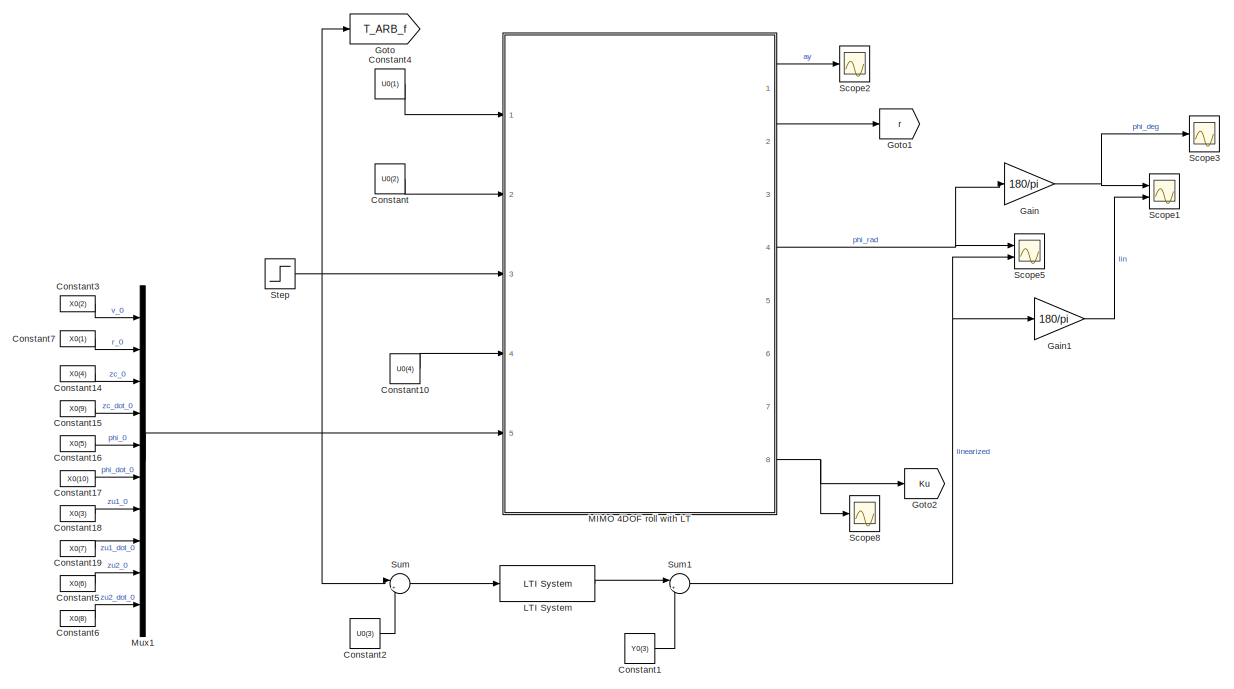
[diagram: root canvas - part 1/2, full width, top band]
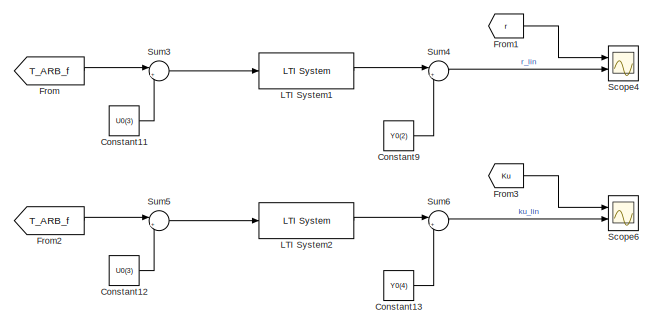
[diagram: root canvas - part 2/2, bottom center region]
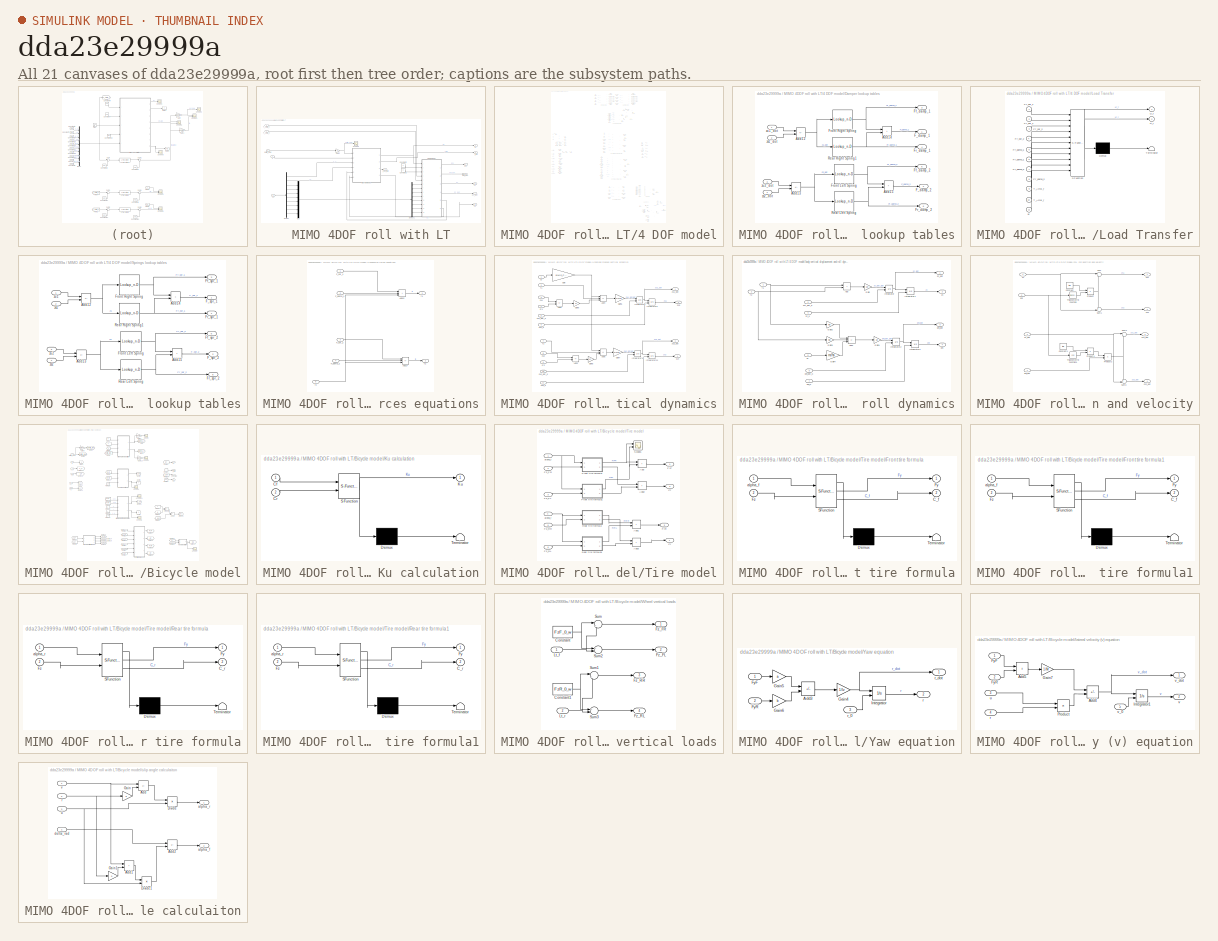
[diagram: thumbnail index - all 21 canvases of the model, root first then tree order]
MODEL slx_dda23e29999a
KIND model
CONFIG AbsTol = auto
CONFIG EnableMultiTasking = off
CONFIG FixedStep = auto
CONFIG MaxStep = auto
CONFIG MinStep = auto
CONFIG RelTol = 1e-3
CONFIG SampleTimeConstraint = Unconstrained
CONFIG SolverName = VariableStepAuto
CONFIG StartTime = 0.0
CONFIG StopTime = 10
BLOCK [Constant] Constant
  Value = U0(2)
BLOCK [Constant] Constant1
  Value = Y0(3)
BLOCK [Constant] Constant10
  Value = U0(4)
BLOCK [Constant] Constant11
  Value = U0(3)
BLOCK [Constant] Constant12
  Value = U0(3)
BLOCK [Constant] Constant13
  Value = Y0(4)
BLOCK [Constant] Constant14
  Value = X0(4)
BLOCK [Constant] Constant15
  Value = X0(9)
BLOCK [Constant] Constant16
  Value = X0(5)
BLOCK [Constant] Constant17
  Value = X0(10)
BLOCK [Constant] Constant18
  Value = X0(3)
BLOCK [Constant] Constant19
  Value = X0(7)
BLOCK [Constant] Constant2
  Value = U0(3)
BLOCK [Constant] Constant3
  Value = X0(2)
BLOCK [Constant] Constant4
  Value = U0(1)
BLOCK [Constant] Constant5
  Value = X0(6)
BLOCK [Constant] Constant6
  Value = X0(8)
BLOCK [Constant] Constant7
  Value = X0(1)
BLOCK [Constant] Constant9
  Value = Y0(2)
BLOCK [From] From
  GotoTag = T_ARB_f
BLOCK [From] From1
  GotoTag = r
BLOCK [From] From2
  GotoTag = T_ARB_f
BLOCK [From] From3
  GotoTag = Ku
BLOCK [Gain] Gain
  Gain = 180/pi
BLOCK [Gain] Gain1
  Gain = 180/pi
BLOCK [Goto] Goto
  GotoTag = T_ARB_f
BLOCK [Goto] Goto1
  GotoTag = r
BLOCK [Goto] Goto2
  GotoTag = Ku
BLOCK [Reference] LTI System  REF=cstblocks/LTI System
  Ports = [1, 1]
  SourceBlock = cstblocks/LTI System
  SourceProductBaseCode = CT
  SourceType = LTI Block
BLOCK [Reference] LTI System1  REF=cstblocks/LTI System
  Ports = [1, 1]
  SourceBlock = cstblocks/LTI System
  SourceProductBaseCode = CT
  SourceType = LTI Block
BLOCK [Reference] LTI System2  REF=cstblocks/LTI System
  Ports = [1, 1]
  SourceBlock = cstblocks/LTI System
  SourceProductBaseCode = CT
  SourceType = LTI Block
BLOCK [SubSystem] MIMO 4DOF roll with LT
  Ports = [5, 8]
  RequestExecContextInheritance = off
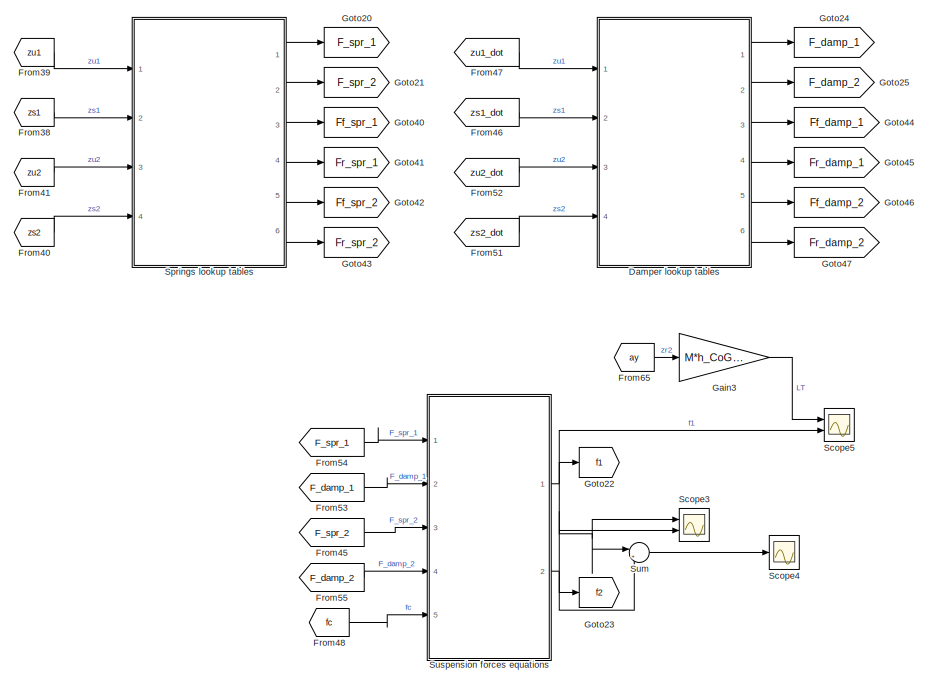
[diagram: MIMO 4DOF roll with LT/4 DOF model - part 1/5, top center region]
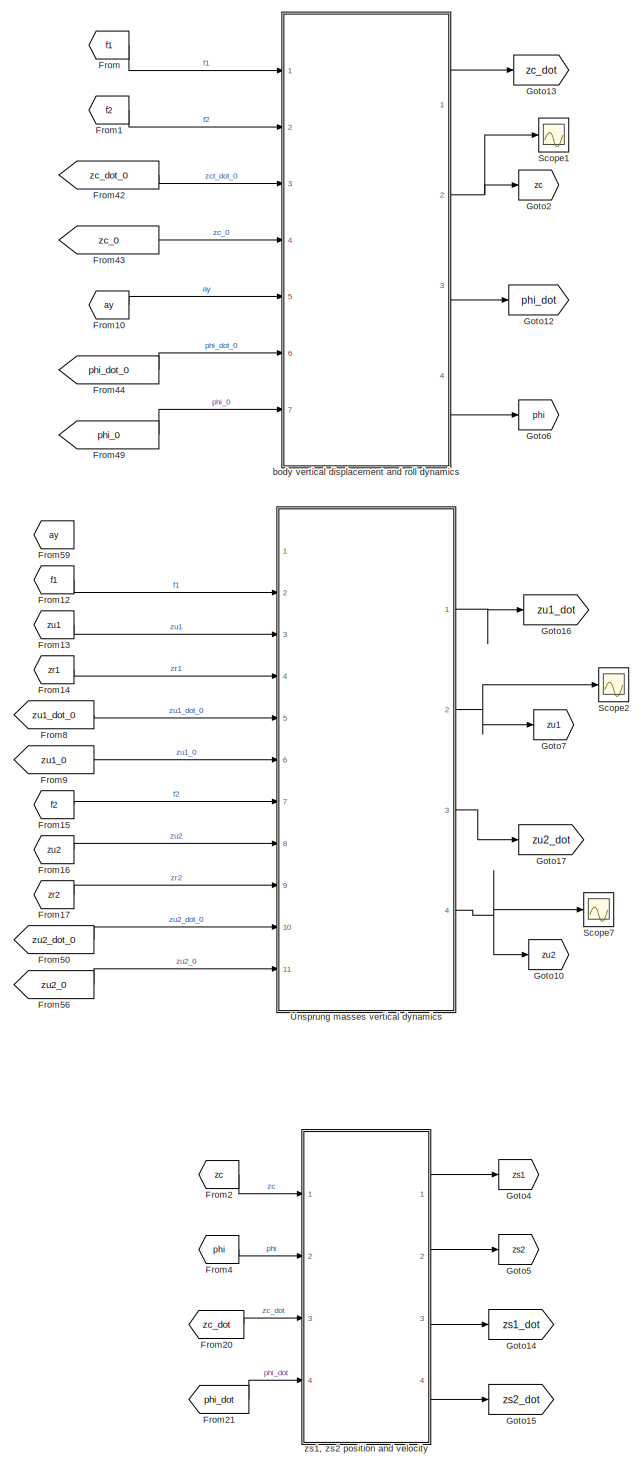
[diagram: MIMO 4DOF roll with LT/4 DOF model - part 2/5, central region]
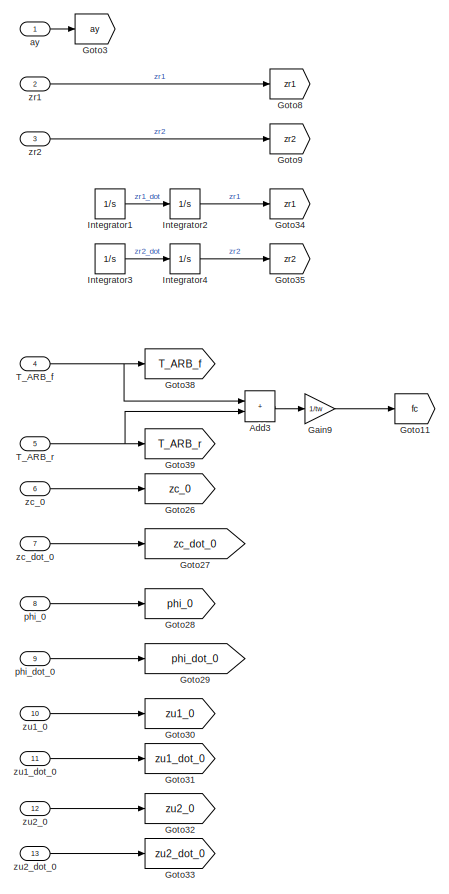
[diagram: MIMO 4DOF roll with LT/4 DOF model - part 3/5, middle left region]
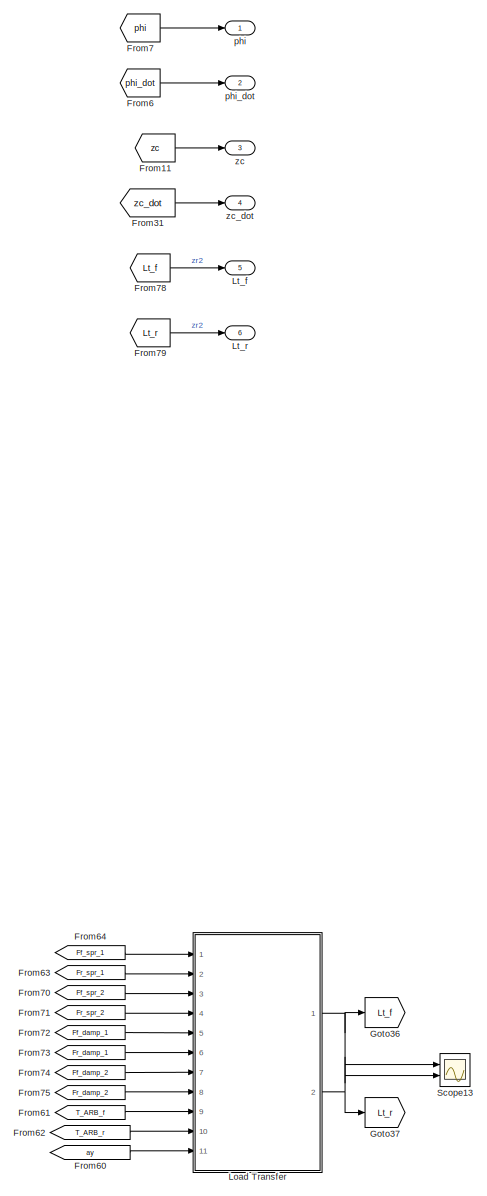
[diagram: MIMO 4DOF roll with LT/4 DOF model - part 4/5, middle right region]
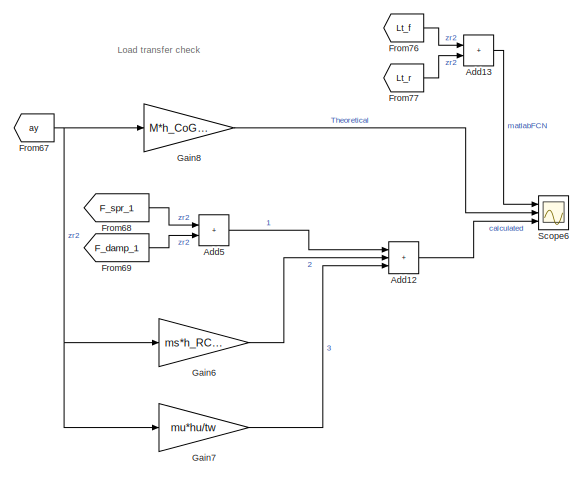
[diagram: MIMO 4DOF roll with LT/4 DOF model - part 5/5, bottom right region]
BLOCK [SubSystem] MIMO 4DOF roll with LT/4 DOF model
  Ports = [13, 6]
  RequestExecContextInheritance = off
BLOCK [Sum] MIMO 4DOF roll with LT/4 DOF model/Add12
  IconShape = rectangular
  Inputs = +++
  Ports = [3, 1]
BLOCK [Sum] MIMO 4DOF roll with LT/4 DOF model/Add13
  IconShape = rectangular
  Ports = [2, 1]
BLOCK [Sum] MIMO 4DOF roll with LT/4 DOF model/Add3
  IconShape = rectangular
  Ports = [2, 1]
BLOCK [Sum] MIMO 4DOF roll with LT/4 DOF model/Add5
  IconShape = rectangular
  Ports = [2, 1]
BLOCK [SubSystem] MIMO 4DOF roll with LT/4 DOF model/Damper lookup tables
  Ports = [4, 6]
  RequestExecContextInheritance = off
BLOCK [Sum] MIMO 4DOF roll with LT/4 DOF model/Damper lookup tables/Add12
  IconShape = rectangular
  Inputs = +-
  Ports = [2, 1]
BLOCK [Sum] MIMO 4DOF roll with LT/4 DOF model/Damper lookup tables/Add13
  IconShape = rectangular
  Inputs = +-
  Ports = [2, 1]
BLOCK [Sum] MIMO 4DOF roll with LT/4 DOF model/Damper lookup tables/Add14
  IconShape = rectangular
  Ports = [2, 1]
BLOCK [Sum] MIMO 4DOF roll with LT/4 DOF model/Damper lookup tables/Add15
  IconShape = rectangular
  Ports = [2, 1]
BLOCK [Outport] MIMO 4DOF roll with LT/4 DOF model/Damper lookup tables/F_damp_1
BLOCK [Outport] MIMO 4DOF roll with LT/4 DOF model/Damper lookup tables/F_damp_2
  Port = 2
BLOCK [Outport] MIMO 4DOF roll with LT/4 DOF model/Damper lookup tables/Ff_damp_1
  Port = 3
BLOCK [Outport] MIMO 4DOF roll with LT/4 DOF model/Damper lookup tables/Ff_damp_2
  Port = 5
BLOCK [Outport] MIMO 4DOF roll with LT/4 DOF model/Damper lookup tables/Fr_damp_1
  Port = 4
BLOCK [Outport] MIMO 4DOF roll with LT/4 DOF model/Damper lookup tables/Fr_damp_2
  Port = 6
BLOCK [Lookup_n-D] MIMO 4DOF roll with LT/4 DOF model/Damper lookup tables/Front Left Spring
  BreakpointsForDimension1 = v_damper
  InputPortMap = u0
  InternalRulePriority = Speed
  NumberOfTableDimensions = 1
  Ports = [1, 1]
  RndMeth = Simplest
  Table = F_damper
BLOCK [Lookup_n-D] MIMO 4DOF roll with LT/4 DOF model/Damper lookup tables/Front Right Spring
  BreakpointsForDimension1 = v_damper
  InputPortMap = u0
  InternalRulePriority = Speed
  NumberOfTableDimensions = 1
  Ports = [1, 1]
  RndMeth = Simplest
  Table = F_damper
BLOCK [Lookup_n-D] MIMO 4DOF roll with LT/4 DOF model/Damper lookup tables/Rear Left Spring
  BreakpointsForDimension1 = v_damper
  InputPortMap = u0
  InternalRulePriority = Speed
  NumberOfTableDimensions = 1
  Ports = [1, 1]
  RndMeth = Simplest
  Table = F_damper
BLOCK [Lookup_n-D] MIMO 4DOF roll with LT/4 DOF model/Damper lookup tables/Rear Right Spring1
  BreakpointsForDimension1 = v_damper
  InputPortMap = u0
  InternalRulePriority = Speed
  NumberOfTableDimensions = 1
  Ports = [1, 1]
  RndMeth = Simplest
  Table = F_damper
BLOCK [Inport] MIMO 4DOF roll with LT/4 DOF model/Damper lookup tables/zs1_dot
  Port = 2
BLOCK [Inport] MIMO 4DOF roll with LT/4 DOF model/Damper lookup tables/zs2_dot
  Port = 4
BLOCK [Inport] MIMO 4DOF roll with LT/4 DOF model/Damper lookup tables/zu1_dot
BLOCK [Inport] MIMO 4DOF roll with LT/4 DOF model/Damper lookup tables/zu2_dot
  Port = 3
BLOCK [From] MIMO 4DOF roll with LT/4 DOF model/From
  GotoTag = f1
BLOCK [From] MIMO 4DOF roll with LT/4 DOF model/From1
  GotoTag = f2
BLOCK [From] MIMO 4DOF roll with LT/4 DOF model/From10
  GotoTag = ay
BLOCK [From] MIMO 4DOF roll with LT/4 DOF model/From11
  GotoTag = zc
BLOCK [From] MIMO 4DOF roll with LT/4 DOF model/From12
  GotoTag = f1
BLOCK [From] MIMO 4DOF roll with LT/4 DOF model/From13
  GotoTag = zu1
BLOCK [From] MIMO 4DOF roll with LT/4 DOF model/From14
  GotoTag = zr1
BLOCK [From] MIMO 4DOF roll with LT/4 DOF model/From15
  GotoTag = f2
BLOCK [From] MIMO 4DOF roll with LT/4 DOF model/From16
  GotoTag = zu2
BLOCK [From] MIMO 4DOF roll with LT/4 DOF model/From17
  GotoTag = zr2
BLOCK [From] MIMO 4DOF roll with LT/4 DOF model/From2
  GotoTag = zc
BLOCK [From] MIMO 4DOF roll with LT/4 DOF model/From20
  GotoTag = zc_dot
BLOCK [From] MIMO 4DOF roll with LT/4 DOF model/From21
  GotoTag = phi_dot
BLOCK [From] MIMO 4DOF roll with LT/4 DOF model/From31
  GotoTag = zc_dot
BLOCK [From] MIMO 4DOF roll with LT/4 DOF model/From38
  GotoTag = zs1
BLOCK [From] MIMO 4DOF roll with LT/4 DOF model/From39
  GotoTag = zu1
BLOCK [From] MIMO 4DOF roll with LT/4 DOF model/From4
  GotoTag = phi
BLOCK [From] MIMO 4DOF roll with LT/4 DOF model/From40
  GotoTag = zs2
BLOCK [From] MIMO 4DOF roll with LT/4 DOF model/From41
  GotoTag = zu2
BLOCK [From] MIMO 4DOF roll with LT/4 DOF model/From42
  GotoTag = zc_dot_0
BLOCK [From] MIMO 4DOF roll with LT/4 DOF model/From43
  GotoTag = zc_0
BLOCK [From] MIMO 4DOF roll with LT/4 DOF model/From44
  GotoTag = phi_dot_0
BLOCK [From] MIMO 4DOF roll with LT/4 DOF model/From45
  GotoTag = F_spr_2
BLOCK [From] MIMO 4DOF roll with LT/4 DOF model/From46
  GotoTag = zs1_dot
BLOCK [From] MIMO 4DOF roll with LT/4 DOF model/From47
  GotoTag = zu1_dot
BLOCK [From] MIMO 4DOF roll with LT/4 DOF model/From48
  GotoTag = fc
BLOCK [From] MIMO 4DOF roll with LT/4 DOF model/From49
  GotoTag = phi_0
BLOCK [From] MIMO 4DOF roll with LT/4 DOF model/From50
  GotoTag = zu2_dot_0
BLOCK [From] MIMO 4DOF roll with LT/4 DOF model/From51
  GotoTag = zs2_dot
BLOCK [From] MIMO 4DOF roll with LT/4 DOF model/From52
  GotoTag = zu2_dot
BLOCK [From] MIMO 4DOF roll with LT/4 DOF model/From53
  GotoTag = F_damp_1
BLOCK [From] MIMO 4DOF roll with LT/4 DOF model/From54
  GotoTag = F_spr_1
BLOCK [From] MIMO 4DOF roll with LT/4 DOF model/From55
  GotoTag = F_damp_2
BLOCK [From] MIMO 4DOF roll with LT/4 DOF model/From56
  GotoTag = zu2_0
BLOCK [From] MIMO 4DOF roll with LT/4 DOF model/From59
  GotoTag = ay
BLOCK [From] MIMO 4DOF roll with LT/4 DOF model/From6
  GotoTag = phi_dot
BLOCK [From] MIMO 4DOF roll with LT/4 DOF model/From60
  GotoTag = ay
BLOCK [From] MIMO 4DOF roll with LT/4 DOF model/From61
  GotoTag = T_ARB_f
BLOCK [From] MIMO 4DOF roll with LT/4 DOF model/From62
  GotoTag = T_ARB_r
BLOCK [From] MIMO 4DOF roll with LT/4 DOF model/From63
  GotoTag = Fr_spr_1
BLOCK [From] MIMO 4DOF roll with LT/4 DOF model/From64
  GotoTag = Ff_spr_1
BLOCK [From] MIMO 4DOF roll with LT/4 DOF model/From65
  GotoTag = ay
BLOCK [From] MIMO 4DOF roll with LT/4 DOF model/From67
  GotoTag = ay
BLOCK [From] MIMO 4DOF roll with LT/4 DOF model/From68
  GotoTag = F_spr_1
BLOCK [From] MIMO 4DOF roll with LT/4 DOF model/From69
  GotoTag = F_damp_1
BLOCK [From] MIMO 4DOF roll with LT/4 DOF model/From7
  GotoTag = phi
BLOCK [From] MIMO 4DOF roll with LT/4 DOF model/From70
  GotoTag = Ff_spr_2
BLOCK [From] MIMO 4DOF roll with LT/4 DOF model/From71
  GotoTag = Fr_spr_2
BLOCK [From] MIMO 4DOF roll with LT/4 DOF model/From72
  GotoTag = Ff_damp_1
BLOCK [From] MIMO 4DOF roll with LT/4 DOF model/From73
  GotoTag = Fr_damp_1
BLOCK [From] MIMO 4DOF roll with LT/4 DOF model/From74
  GotoTag = Ff_damp_2
BLOCK [From] MIMO 4DOF roll with LT/4 DOF model/From75
  GotoTag = Fr_damp_2
BLOCK [From] MIMO 4DOF roll with LT/4 DOF model/From76
  GotoTag = Lt_f
BLOCK [From] MIMO 4DOF roll with LT/4 DOF model/From77
  GotoTag = Lt_r
BLOCK [From] MIMO 4DOF roll with LT/4 DOF model/From78
  GotoTag = Lt_f
BLOCK [From] MIMO 4DOF roll with LT/4 DOF model/From79
  GotoTag = Lt_r
BLOCK [From] MIMO 4DOF roll with LT/4 DOF model/From8
  GotoTag = zu1_dot_0
BLOCK [From] MIMO 4DOF roll with LT/4 DOF model/From9
  GotoTag = zu1_0
BLOCK [Gain] MIMO 4DOF roll with LT/4 DOF model/Gain3
  Gain = M*h_CoG/tw
BLOCK [Gain] MIMO 4DOF roll with LT/4 DOF model/Gain6
  Gain = ms*h_RC/tw
BLOCK [Gain] MIMO 4DOF roll with LT/4 DOF model/Gain7
  Gain = mu*hu/tw
BLOCK [Gain] MIMO 4DOF roll with LT/4 DOF model/Gain8
  Gain = M*h_CoG/tw
BLOCK [Gain] MIMO 4DOF roll with LT/4 DOF model/Gain9
  Gain = 1/tw
BLOCK [Goto] MIMO 4DOF roll with LT/4 DOF model/Goto10
  GotoTag = zu2
BLOCK [Goto] MIMO 4DOF roll with LT/4 DOF model/Goto11
  GotoTag = fc
BLOCK [Goto] MIMO 4DOF roll with LT/4 DOF model/Goto12
  GotoTag = phi_dot
BLOCK [Goto] MIMO 4DOF roll with LT/4 DOF model/Goto13
  GotoTag = zc_dot
BLOCK [Goto] MIMO 4DOF roll with LT/4 DOF model/Goto14
  GotoTag = zs1_dot
BLOCK [Goto] MIMO 4DOF roll with LT/4 DOF model/Goto15
  GotoTag = zs2_dot
BLOCK [Goto] MIMO 4DOF roll with LT/4 DOF model/Goto16
  GotoTag = zu1_dot
BLOCK [Goto] MIMO 4DOF roll with LT/4 DOF model/Goto17
  GotoTag = zu2_dot
BLOCK [Goto] MIMO 4DOF roll with LT/4 DOF model/Goto2
  GotoTag = zc
BLOCK [Goto] MIMO 4DOF roll with LT/4 DOF model/Goto20
  GotoTag = F_spr_1
BLOCK [Goto] MIMO 4DOF roll with LT/4 DOF model/Goto21
  GotoTag = F_spr_2
BLOCK [Goto] MIMO 4DOF roll with LT/4 DOF model/Goto22
  GotoTag = f1
BLOCK [Goto] MIMO 4DOF roll with LT/4 DOF model/Goto23
  GotoTag = f2
BLOCK [Goto] MIMO 4DOF roll with LT/4 DOF model/Goto24
  GotoTag = F_damp_1
BLOCK [Goto] MIMO 4DOF roll with LT/4 DOF model/Goto25
  GotoTag = F_damp_2
BLOCK [Goto] MIMO 4DOF roll with LT/4 DOF model/Goto26
  GotoTag = zc_0
BLOCK [Goto] MIMO 4DOF roll with LT/4 DOF model/Goto27
  GotoTag = zc_dot_0
BLOCK [Goto] MIMO 4DOF roll with LT/4 DOF model/Goto28
  GotoTag = phi_0
BLOCK [Goto] MIMO 4DOF roll with LT/4 DOF model/Goto29
  GotoTag = phi_dot_0
BLOCK [Goto] MIMO 4DOF roll with LT/4 DOF model/Goto3
  GotoTag = ay
BLOCK [Goto] MIMO 4DOF roll with LT/4 DOF model/Goto30
  GotoTag = zu1_0
BLOCK [Goto] MIMO 4DOF roll with LT/4 DOF model/Goto31
  GotoTag = zu1_dot_0
BLOCK [Goto] MIMO 4DOF roll with LT/4 DOF model/Goto32
  GotoTag = zu2_0
BLOCK [Goto] MIMO 4DOF roll with LT/4 DOF model/Goto33
  GotoTag = zu2_dot_0
BLOCK [Goto] MIMO 4DOF roll with LT/4 DOF model/Goto34
  Commented = on
  GotoTag = zr1
BLOCK [Goto] MIMO 4DOF roll with LT/4 DOF model/Goto35
  Commented = on
  GotoTag = zr2
BLOCK [Goto] MIMO 4DOF roll with LT/4 DOF model/Goto36
  GotoTag = Lt_f
BLOCK [Goto] MIMO 4DOF roll with LT/4 DOF model/Goto37
  GotoTag = Lt_r
BLOCK [Goto] MIMO 4DOF roll with LT/4 DOF model/Goto38
  GotoTag = T_ARB_f
BLOCK [Goto] MIMO 4DOF roll with LT/4 DOF model/Goto39
  GotoTag = T_ARB_r
BLOCK [Goto] MIMO 4DOF roll with LT/4 DOF model/Goto4
  GotoTag = zs1
BLOCK [Goto] MIMO 4DOF roll with LT/4 DOF model/Goto40
  GotoTag = Ff_spr_1
BLOCK [Goto] MIMO 4DOF roll with LT/4 DOF model/Goto41
  GotoTag = Fr_spr_1
BLOCK [Goto] MIMO 4DOF roll with LT/4 DOF model/Goto42
  GotoTag = Ff_spr_2
BLOCK [Goto] MIMO 4DOF roll with LT/4 DOF model/Goto43
  GotoTag = Fr_spr_2
BLOCK [Goto] MIMO 4DOF roll with LT/4 DOF model/Goto44
  GotoTag = Ff_damp_1
BLOCK [Goto] MIMO 4DOF roll with LT/4 DOF model/Goto45
  GotoTag = Fr_damp_1
BLOCK [Goto] MIMO 4DOF roll with LT/4 DOF model/Goto46
  GotoTag = Ff_damp_2
BLOCK [Goto] MIMO 4DOF roll with LT/4 DOF model/Goto47
  GotoTag = Fr_damp_2
BLOCK [Goto] MIMO 4DOF roll with LT/4 DOF model/Goto5
  GotoTag = zs2
BLOCK [Goto] MIMO 4DOF roll with LT/4 DOF model/Goto6
  GotoTag = phi
BLOCK [Goto] MIMO 4DOF roll with LT/4 DOF model/Goto7
  GotoTag = zu1
BLOCK [Goto] MIMO 4DOF roll with LT/4 DOF model/Goto8
  GotoTag = zr1
BLOCK [Goto] MIMO 4DOF roll with LT/4 DOF model/Goto9
  GotoTag = zr2
BLOCK [Integrator] MIMO 4DOF roll with LT/4 DOF model/Integrator1
  Commented = on
  Ports = [1, 1]
BLOCK [Integrator] MIMO 4DOF roll with LT/4 DOF model/Integrator2
  Commented = on
  Ports = [1, 1]
BLOCK [Integrator] MIMO 4DOF roll with LT/4 DOF model/Integrator3
  Commented = on
  Ports = [1, 1]
BLOCK [Integrator] MIMO 4DOF roll with LT/4 DOF model/Integrator4
  Commented = on
  Ports = [1, 1]
BLOCK [SubSystem] MIMO 4DOF roll with LT/4 DOF model/Load Transfer
  ErrorFcn = Stateflow.Translate.translate
  PermitHierarchicalResolution = ExplicitOnly
  Ports = [11, 2]
  RequestExecContextInheritance = off
  SFBlockType = MATLAB Function
  TreatAsAtomicUnit = on
BLOCK [Demux] MIMO 4DOF roll with LT/4 DOF model/Load Transfer/ Demux 
  Outputs = 1
  Ports = [1, 1]
BLOCK [S-Function] MIMO 4DOF roll with LT/4 DOF model/Load Transfer/ SFunction 
  EnableBusSupport = on
  FunctionName = sf_sfun
  PortCounts = [11 3]
  Ports = [11, 3]
  SFcnIsStateOwnerBlock = off
  SFunctionDeploymentMode = off
  Tag = Stateflow S-Function 7
BLOCK [Terminator] MIMO 4DOF roll with LT/4 DOF model/Load Transfer/ Terminator 
BLOCK [Inport] MIMO 4DOF roll with LT/4 DOF model/Load Transfer/Ff_damp_1
  Port = 5
BLOCK [Inport] MIMO 4DOF roll with LT/4 DOF model/Load Transfer/Ff_damp_2
  Port = 7
BLOCK [Inport] MIMO 4DOF roll with LT/4 DOF model/Load Transfer/Ff_spr_1
BLOCK [Inport] MIMO 4DOF roll with LT/4 DOF model/Load Transfer/Ff_spr_2
  Port = 3
BLOCK [Inport] MIMO 4DOF roll with LT/4 DOF model/Load Transfer/Fr_damp_1
  Port = 6
BLOCK [Inport] MIMO 4DOF roll with LT/4 DOF model/Load Transfer/Fr_damp_2
  Port = 8
BLOCK [Inport] MIMO 4DOF roll with LT/4 DOF model/Load Transfer/Fr_spr_1
  Port = 2
BLOCK [Inport] MIMO 4DOF roll with LT/4 DOF model/Load Transfer/Fr_spr_2
  Port = 4
BLOCK [Outport] MIMO 4DOF roll with LT/4 DOF model/Load Transfer/Lt_f
BLOCK [Outport] MIMO 4DOF roll with LT/4 DOF model/Load Transfer/Lt_r
  Port = 2
BLOCK [Inport] MIMO 4DOF roll with LT/4 DOF model/Load Transfer/T_ARB_f
  Port = 9
BLOCK [Inport] MIMO 4DOF roll with LT/4 DOF model/Load Transfer/T_ARB_r
  Port = 10
BLOCK [Inport] MIMO 4DOF roll with LT/4 DOF model/Load Transfer/ay
  Port = 11
BLOCK [Outport] MIMO 4DOF roll with LT/4 DOF model/Lt_f
  Port = 5
BLOCK [Outport] MIMO 4DOF roll with LT/4 DOF model/Lt_r
  Port = 6
BLOCK [Scope] MIMO 4DOF roll with LT/4 DOF model/Scope1
  Floating = off
  NumInputPorts = 1
  Ports = [1]
  ScopeSpecificationString = Simulink.scopes.TimeScopeBlockCfg('CurrentConfiguration', extmgr.ConfigurationSet(extmgr.Configuration('Core','General UI',true,'FigureColor',[1 1 1]),extmgr.Configuration('Core','Source UI',true),extmgr.Configuration('Sources','WiredSimulink',true,'DataLoggingVariableName','ScopeData1'),extmgr.Configuration('Visuals','Time Domain',true,'SerializedDisplays',{struct('MinYLimReal','-0.00085','MaxYLi...<+1926ch>
BLOCK [Scope] MIMO 4DOF roll with LT/4 DOF model/Scope13
  Floating = off
  NumInputPorts = 2
  Ports = [2]
  ScopeSpecificationString = Simulink.scopes.TimeScopeBlockCfg('CurrentConfiguration', extmgr.ConfigurationSet(extmgr.Configuration('Core','General UI',true,'FigureColor',[1 1 1]),extmgr.Configuration('Core','Source UI',true),extmgr.Configuration('Sources','WiredSimulink',true,'DataLoggingVariableName','ScopeData1'),extmgr.Configuration('Visuals','Time Domain',true,'SerializedDisplays',{struct('MinYLimReal','-278.73922','MaxY...<+1588ch>
BLOCK [Scope] MIMO 4DOF roll with LT/4 DOF model/Scope2
  Floating = off
  NumInputPorts = 1
  Ports = [1]
  ScopeSpecificationString = Simulink.scopes.TimeScopeBlockCfg('CurrentConfiguration', extmgr.ConfigurationSet(extmgr.Configuration('Core','General UI',true,'FigureColor',[1 1 1]),extmgr.Configuration('Core','Source UI',true),extmgr.Configuration('Sources','WiredSimulink',true,'DataLoggingVariableName','ScopeData2'),extmgr.Configuration('Visuals','Time Domain',true,'SerializedDisplays',{struct('MinYLimReal','-0.01035','MaxYLi...<+1919ch>
BLOCK [Scope] MIMO 4DOF roll with LT/4 DOF model/Scope3
  Floating = off
  NumInputPorts = 2
  Ports = [2]
  ScopeSpecificationString = Simulink.scopes.TimeScopeBlockCfg('CurrentConfiguration', extmgr.ConfigurationSet(extmgr.Configuration('Core','General UI',true,'FigureColor',[1 1 1]),extmgr.Configuration('Core','Source UI',true),extmgr.Configuration('Sources','WiredSimulink',true,'DataLoggingVariableName','ScopeData3'),extmgr.Configuration('Visuals','Time Domain',true,'SerializedDisplays',{struct('MinYLimReal','-3621.50195','Max...<+1603ch>
BLOCK [Scope] MIMO 4DOF roll with LT/4 DOF model/Scope4
  Floating = off
  NumInputPorts = 1
  Ports = [1]
  ScopeSpecificationString = Simulink.scopes.TimeScopeBlockCfg('CurrentConfiguration', extmgr.ConfigurationSet(extmgr.Configuration('Core','General UI',true,'FigureColor',[1 1 1]),extmgr.Configuration('Core','Source UI',true),extmgr.Configuration('Sources','WiredSimulink',true,'DataLoggingVariableName','ScopeData4'),extmgr.Configuration('Visuals','Time Domain',true,'SerializedDisplays',{struct('MinYLimReal','-7.1954','MaxYLim...<+1547ch>
BLOCK [Scope] MIMO 4DOF roll with LT/4 DOF model/Scope5
  Floating = off
  NumInputPorts = 2
  Ports = [2]
  ScopeSpecificationString = Simulink.scopes.TimeScopeBlockCfg('CurrentConfiguration', extmgr.ConfigurationSet(extmgr.Configuration('Core','General UI',true,'FigureColor',[1 1 1]),extmgr.Configuration('Core','Source UI',true),extmgr.Configuration('Sources','WiredSimulink',true,'DataLoggingVariableName','ScopeData5'),extmgr.Configuration('Visuals','Time Domain',true,'SerializedDisplays',{struct('MinYLimReal','-511.55899','MaxY...<+1552ch>
BLOCK [Scope] MIMO 4DOF roll with LT/4 DOF model/Scope6
  Floating = off
  NumInputPorts = 3
  Ports = [3]
  ScopeSpecificationString = Simulink.scopes.TimeScopeBlockCfg('CurrentConfiguration', extmgr.ConfigurationSet(extmgr.Configuration('Core','General UI',true,'FigureColor',[1 1 1]),extmgr.Configuration('Core','Source UI',true),extmgr.Configuration('Sources','WiredSimulink',true,'DataLoggingVariableName','ScopeData1'),extmgr.Configuration('Visuals','Time Domain',true,'SerializedDisplays',{struct('MinYLimReal','-537.76429','MaxY...<+1640ch>
BLOCK [Scope] MIMO 4DOF roll with LT/4 DOF model/Scope7
  Floating = off
  NumInputPorts = 1
  Ports = [1]
  ScopeSpecificationString = Simulink.scopes.TimeScopeBlockCfg('CurrentConfiguration', extmgr.ConfigurationSet(extmgr.Configuration('Core','General UI',true,'FigureColor',[1 1 1]),extmgr.Configuration('Core','Source UI',true),extmgr.Configuration('Sources','WiredSimulink',true,'DataLoggingVariableName','ScopeData3'),extmgr.Configuration('Visuals','Time Domain',true,'SerializedDisplays',{struct('MinYLimReal','0.00931','MaxYLim...<+1913ch>
BLOCK [SubSystem] MIMO 4DOF roll with LT/4 DOF model/Springs lookup tables
  Ports = [4, 6]
  RequestExecContextInheritance = off
BLOCK [Sum] MIMO 4DOF roll with LT/4 DOF model/Springs lookup tables/Add12
  IconShape = rectangular
  Inputs = +-
  Ports = [2, 1]
BLOCK [Sum] MIMO 4DOF roll with LT/4 DOF model/Springs lookup tables/Add13
  IconShape = rectangular
  Inputs = +-
  Ports = [2, 1]
BLOCK [Sum] MIMO 4DOF roll with LT/4 DOF model/Springs lookup tables/Add14
  IconShape = rectangular
  Ports = [2, 1]
BLOCK [Sum] MIMO 4DOF roll with LT/4 DOF model/Springs lookup tables/Add15
  IconShape = rectangular
  Ports = [2, 1]
BLOCK [Outport] MIMO 4DOF roll with LT/4 DOF model/Springs lookup tables/F_spr_1
BLOCK [Outport] MIMO 4DOF roll with LT/4 DOF model/Springs lookup tables/F_spr_2
  Port = 2
BLOCK [Outport] MIMO 4DOF roll with LT/4 DOF model/Springs lookup tables/Ff_spr_1
  Port = 3
BLOCK [Outport] MIMO 4DOF roll with LT/4 DOF model/Springs lookup tables/Ff_spr_2
  Port = 5
BLOCK [Outport] MIMO 4DOF roll with LT/4 DOF model/Springs lookup tables/Fr_spr_1
  Port = 4
BLOCK [Outport] MIMO 4DOF roll with LT/4 DOF model/Springs lookup tables/Fr_spr_2
  Port = 6
BLOCK [Lookup_n-D] MIMO 4DOF roll with LT/4 DOF model/Springs lookup tables/Front Left Spring
  BreakpointsForDimension1 = Z_spring
  InputPortMap = u0
  InternalRulePriority = Speed
  NumberOfTableDimensions = 1
  Ports = [1, 1]
  RndMeth = Simplest
  Table = Ff_spring
BLOCK [Lookup_n-D] MIMO 4DOF roll with LT/4 DOF model/Springs lookup tables/Front Right Spring
  BreakpointsForDimension1 = Z_spring
  InputPortMap = u0
  InternalRulePriority = Speed
  NumberOfTableDimensions = 1
  Ports = [1, 1]
  RndMeth = Simplest
  Table = Ff_spring
BLOCK [Lookup_n-D] MIMO 4DOF roll with LT/4 DOF model/Springs lookup tables/Rear Left Spring
  BreakpointsForDimension1 = Z_spring
  InputPortMap = u0
  InternalRulePriority = Speed
  NumberOfTableDimensions = 1
  Ports = [1, 1]
  RndMeth = Simplest
  Table = Fr_spring
BLOCK [Lookup_n-D] MIMO 4DOF roll with LT/4 DOF model/Springs lookup tables/Rear Right Spring1
  BreakpointsForDimension1 = Z_spring
  InputPortMap = u0
  InternalRulePriority = Speed
  NumberOfTableDimensions = 1
  Ports = [1, 1]
  RndMeth = Simplest
  Table = Fr_spring
BLOCK [Inport] MIMO 4DOF roll with LT/4 DOF model/Springs lookup tables/zs1
  Port = 2
BLOCK [Inport] MIMO 4DOF roll with LT/4 DOF model/Springs lookup tables/zs2
  Port = 4
BLOCK [Inport] MIMO 4DOF roll with LT/4 DOF model/Springs lookup tables/zu1
BLOCK [Inport] MIMO 4DOF roll with LT/4 DOF model/Springs lookup tables/zu2
  Port = 3
BLOCK [Sum] MIMO 4DOF roll with LT/4 DOF model/Sum
  Inputs = |++
  Ports = [2, 1]
BLOCK [SubSystem] MIMO 4DOF roll with LT/4 DOF model/Suspension forces equations
  Ports = [5, 2]
  RequestExecContextInheritance = off
BLOCK [Sum] MIMO 4DOF roll with LT/4 DOF model/Suspension forces equations/Add12
  IconShape = rectangular
  Inputs = +++
  Ports = [3, 1]
BLOCK [Sum] MIMO 4DOF roll with LT/4 DOF model/Suspension forces equations/Add17
  IconShape = rectangular
  Inputs = ++-
  Ports = [3, 1]
BLOCK [Inport] MIMO 4DOF roll with LT/4 DOF model/Suspension forces equations/F_damp_1
  Port = 2
BLOCK [Inport] MIMO 4DOF roll with LT/4 DOF model/Suspension forces equations/F_damp_2
  Port = 4
BLOCK [Inport] MIMO 4DOF roll with LT/4 DOF model/Suspension forces equations/F_spr_1
BLOCK [Inport] MIMO 4DOF roll with LT/4 DOF model/Suspension forces equations/F_spr_2
  Port = 3
BLOCK [Outport] MIMO 4DOF roll with LT/4 DOF model/Suspension forces equations/f1
BLOCK [Outport] MIMO 4DOF roll with LT/4 DOF model/Suspension forces equations/f2
  Port = 2
BLOCK [Inport] MIMO 4DOF roll with LT/4 DOF model/Suspension forces equations/fc
  Port = 5
BLOCK [Inport] MIMO 4DOF roll with LT/4 DOF model/T_ARB_f
  Port = 4
BLOCK [Inport] MIMO 4DOF roll with LT/4 DOF model/T_ARB_r
  Port = 5
BLOCK [SubSystem] MIMO 4DOF roll with LT/4 DOF model/Unsprung masses vertical dynamics
  Ports = [11, 4]
  RequestExecContextInheritance = off
BLOCK [Sum] MIMO 4DOF roll with LT/4 DOF model/Unsprung masses vertical dynamics/Add2
  IconShape = rectangular
  Inputs = +-
  Ports = [2, 1]
BLOCK [Sum] MIMO 4DOF roll with LT/4 DOF model/Unsprung masses vertical dynamics/Add3
  IconShape = rectangular
  Inputs = +-
  Ports = [2, 1]
BLOCK [Sum] MIMO 4DOF roll with LT/4 DOF model/Unsprung masses vertical dynamics/Add4
  IconShape = rectangular
  Inputs = ---
  Ports = [3, 1]
BLOCK [Sum] MIMO 4DOF roll with LT/4 DOF model/Unsprung masses vertical dynamics/Add5
  IconShape = rectangular
  Inputs = +--
  Ports = [3, 1]
BLOCK [Gain] MIMO 4DOF roll with LT/4 DOF model/Unsprung masses vertical dynamics/Gain
  Gain = 0*M*h_CoG/(2*tw)
BLOCK [Gain] MIMO 4DOF roll with LT/4 DOF model/Unsprung masses vertical dynamics/Gain5
  Gain = 1/mui
BLOCK [Gain] MIMO 4DOF roll with LT/4 DOF model/Unsprung masses vertical dynamics/Gain6
  Gain = Kt
BLOCK [Gain] MIMO 4DOF roll with LT/4 DOF model/Unsprung masses vertical dynamics/Gain7
  Gain = 1/mui
BLOCK [Gain] MIMO 4DOF roll with LT/4 DOF model/Unsprung masses vertical dynamics/Gain8
  Gain = Kt
BLOCK [Integrator] MIMO 4DOF roll with LT/4 DOF model/Unsprung masses vertical dynamics/Integrator10
  InitialConditionSource = external
  Ports = [2, 1]
BLOCK [Integrator] MIMO 4DOF roll with LT/4 DOF model/Unsprung masses vertical dynamics/Integrator11
  InitialConditionSource = external
  Ports = [2, 1]
BLOCK [Integrator] MIMO 4DOF roll with LT/4 DOF model/Unsprung masses vertical dynamics/Integrator4
  InitialConditionSource = external
  Ports = [2, 1]
BLOCK [Integrator] MIMO 4DOF roll with LT/4 DOF model/Unsprung masses vertical dynamics/Integrator5
  InitialConditionSource = external
  Ports = [2, 1]
BLOCK [Inport] MIMO 4DOF roll with LT/4 DOF model/Unsprung masses vertical dynamics/ay
BLOCK [Inport] MIMO 4DOF roll with LT/4 DOF model/Unsprung masses vertical dynamics/f1
  Port = 2
BLOCK [Inport] MIMO 4DOF roll with LT/4 DOF model/Unsprung masses vertical dynamics/f2
  Port = 7
BLOCK [Inport] MIMO 4DOF roll with LT/4 DOF model/Unsprung masses vertical dynamics/zr1
  Port = 4
BLOCK [Inport] MIMO 4DOF roll with LT/4 DOF model/Unsprung masses vertical dynamics/zr2
  Port = 9
BLOCK [Inport] MIMO 4DOF roll with LT/4 DOF model/Unsprung masses vertical dynamics/zu1
  Port = 3
BLOCK [Inport] MIMO 4DOF roll with LT/4 DOF model/Unsprung masses vertical dynamics/zu1_0
  Port = 6
BLOCK [Outport] MIMO 4DOF roll with LT/4 DOF model/Unsprung masses vertical dynamics/zu1_dot
BLOCK [Inport] MIMO 4DOF roll with LT/4 DOF model/Unsprung masses vertical dynamics/zu1_dot_0
  Port = 5
BLOCK [Inport] MIMO 4DOF roll with LT/4 DOF model/Unsprung masses vertical dynamics/zu2
  Port = 8
BLOCK [Inport] MIMO 4DOF roll with LT/4 DOF model/Unsprung masses vertical dynamics/zu2_0
  Port = 11
BLOCK [Outport] MIMO 4DOF roll with LT/4 DOF model/Unsprung masses vertical dynamics/zu2_dot
  Port = 3
BLOCK [Inport] MIMO 4DOF roll with LT/4 DOF model/Unsprung masses vertical dynamics/zu2_dot_0
  Port = 10
BLOCK [Outport] MIMO 4DOF roll with LT/4 DOF model/Unsprung masses vertical dynamics/zu3
  Port = 2
BLOCK [Outport] MIMO 4DOF roll with LT/4 DOF model/Unsprung masses vertical dynamics/zu4
  Port = 4
BLOCK [Inport] MIMO 4DOF roll with LT/4 DOF model/ay
BLOCK [SubSystem] MIMO 4DOF roll with LT/4 DOF model/body vertical displacement and roll dynamics
  Ports = [7, 4]
  RequestExecContextInheritance = off
BLOCK [Sum] MIMO 4DOF roll with LT/4 DOF model/body vertical displacement and roll dynamics/Add
  IconShape = rectangular
  Ports = [2, 1]
BLOCK [Sum] MIMO 4DOF roll with LT/4 DOF model/body vertical displacement and roll dynamics/Add1
  IconShape = rectangular
  Inputs = -++
  Ports = [3, 1]
BLOCK [Gain] MIMO 4DOF roll with LT/4 DOF model/body vertical displacement and roll dynamics/Gain
  Gain = 1/M
BLOCK [Gain] MIMO 4DOF roll with LT/4 DOF model/body vertical displacement and roll dynamics/Gain1
  Gain = 1/Ix
BLOCK [Gain] MIMO 4DOF roll with LT/4 DOF model/body vertical displacement and roll dynamics/Gain2
  Gain = tw/2
BLOCK [Gain] MIMO 4DOF roll with LT/4 DOF model/body vertical displacement and roll dynamics/Gain3
  Gain = tw/2
BLOCK [Gain] MIMO 4DOF roll with LT/4 DOF model/body vertical displacement and roll dynamics/Gain4
  Gain = ms*hs
BLOCK [Integrator] MIMO 4DOF roll with LT/4 DOF model/body vertical displacement and roll dynamics/Integrator
  InitialConditionSource = external
  Ports = [2, 1]
BLOCK [Integrator] MIMO 4DOF roll with LT/4 DOF model/body vertical displacement and roll dynamics/Integrator1
  InitialConditionSource = external
  Ports = [2, 1]
BLOCK [Integrator] MIMO 4DOF roll with LT/4 DOF model/body vertical displacement and roll dynamics/Integrator2
  InitialConditionSource = external
  Ports = [2, 1]
BLOCK [Integrator] MIMO 4DOF roll with LT/4 DOF model/body vertical displacement and roll dynamics/Integrator3
  InitialConditionSource = external
  Ports = [2, 1]
BLOCK [Inport] MIMO 4DOF roll with LT/4 DOF model/body vertical displacement and roll dynamics/ay
  Port = 5
BLOCK [Inport] MIMO 4DOF roll with LT/4 DOF model/body vertical displacement and roll dynamics/f1
BLOCK [Inport] MIMO 4DOF roll with LT/4 DOF model/body vertical displacement and roll dynamics/f2
  Port = 2
BLOCK [Outport] MIMO 4DOF roll with LT/4 DOF model/body vertical displacement and roll dynamics/phi
  Port = 4
BLOCK [Inport] MIMO 4DOF roll with LT/4 DOF model/body vertical displacement and roll dynamics/phi_0
  Port = 7
BLOCK [Outport] MIMO 4DOF roll with LT/4 DOF model/body vertical displacement and roll dynamics/phi_dot
  Port = 3
BLOCK [Inport] MIMO 4DOF roll with LT/4 DOF model/body vertical displacement and roll dynamics/phi_dot_0
  Port = 6
BLOCK [Outport] MIMO 4DOF roll with LT/4 DOF model/body vertical displacement and roll dynamics/zc
  Port = 2
BLOCK [Inport] MIMO 4DOF roll with LT/4 DOF model/body vertical displacement and roll dynamics/zc_0
  Port = 4
BLOCK [Outport] MIMO 4DOF roll with LT/4 DOF model/body vertical displacement and roll dynamics/zc_dot
BLOCK [Inport] MIMO 4DOF roll with LT/4 DOF model/body vertical displacement and roll dynamics/zct_dot_0
  Port = 3
BLOCK [Outport] MIMO 4DOF roll with LT/4 DOF model/phi
BLOCK [Inport] MIMO 4DOF roll with LT/4 DOF model/phi_0
  Port = 8
BLOCK [Outport] MIMO 4DOF roll with LT/4 DOF model/phi_dot
  Port = 2
BLOCK [Inport] MIMO 4DOF roll with LT/4 DOF model/phi_dot_0
  Port = 9
BLOCK [Outport] MIMO 4DOF roll with LT/4 DOF model/zc
  Port = 3
BLOCK [Inport] MIMO 4DOF roll with LT/4 DOF model/zc_0
  Port = 6
BLOCK [Outport] MIMO 4DOF roll with LT/4 DOF model/zc_dot
  Port = 4
BLOCK [Inport] MIMO 4DOF roll with LT/4 DOF model/zc_dot_0
  Port = 7
BLOCK [Inport] MIMO 4DOF roll with LT/4 DOF model/zr1
  Port = 2
BLOCK [Inport] MIMO 4DOF roll with LT/4 DOF model/zr2
  Port = 3
BLOCK [SubSystem] MIMO 4DOF roll with LT/4 DOF model/zs1, zs2 position and velocity
  Ports = [4, 4]
  RequestExecContextInheritance = off
BLOCK [Constant] MIMO 4DOF roll with LT/4 DOF model/zs1, zs2 position and velocity/Constant
  Value = tw/2
BLOCK [Constant] MIMO 4DOF roll with LT/4 DOF model/zs1, zs2 position and velocity/Constant1
  Value = tw/2
BLOCK [Product] MIMO 4DOF roll with LT/4 DOF model/zs1, zs2 position and velocity/Product
  Ports = [2, 1]
BLOCK [Product] MIMO 4DOF roll with LT/4 DOF model/zs1, zs2 position and velocity/Product1
  Ports = [2, 1]
BLOCK [Product] MIMO 4DOF roll with LT/4 DOF model/zs1, zs2 position and velocity/Product2
  Ports = [2, 1]
BLOCK [Sum] MIMO 4DOF roll with LT/4 DOF model/zs1, zs2 position and velocity/Sum
  Inputs = |+-
  Ports = [2, 1]
BLOCK [Sum] MIMO 4DOF roll with LT/4 DOF model/zs1, zs2 position and velocity/Sum1
  Inputs = ++|
  Ports = [2, 1]
BLOCK [Sum] MIMO 4DOF roll with LT/4 DOF model/zs1, zs2 position and velocity/Sum2
  Inputs = |+-
  Ports = [2, 1]
BLOCK [Sum] MIMO 4DOF roll with LT/4 DOF model/zs1, zs2 position and velocity/Sum3
  Inputs = ++|
  Ports = [2, 1]
BLOCK [Trigonometry] MIMO 4DOF roll with LT/4 DOF model/zs1, zs2 position and velocity/Trigonometric Function
  Ports = [1, 1]
BLOCK [Trigonometry] MIMO 4DOF roll with LT/4 DOF model/zs1, zs2 position and velocity/Trigonometric Function1
  Operator = cos
  Ports = [1, 1]
BLOCK [Inport] MIMO 4DOF roll with LT/4 DOF model/zs1, zs2 position and velocity/phi
  Port = 2
BLOCK [Inport] MIMO 4DOF roll with LT/4 DOF model/zs1, zs2 position and velocity/phi_dot
  Port = 4
BLOCK [Inport] MIMO 4DOF roll with LT/4 DOF model/zs1, zs2 position and velocity/zc
BLOCK [Inport] MIMO 4DOF roll with LT/4 DOF model/zs1, zs2 position and velocity/zc_dot
  Port = 3
BLOCK [Outport] MIMO 4DOF roll with LT/4 DOF model/zs1, zs2 position and velocity/zs1
BLOCK [Outport] MIMO 4DOF roll with LT/4 DOF model/zs1, zs2 position and velocity/zs1_dot
  Port = 3
BLOCK [Outport] MIMO 4DOF roll with LT/4 DOF model/zs1, zs2 position and velocity/zs2
  Port = 2
BLOCK [Outport] MIMO 4DOF roll with LT/4 DOF model/zs1, zs2 position and velocity/zs2_dot
  Port = 4
BLOCK [Inport] MIMO 4DOF roll with LT/4 DOF model/zu1_0
  Port = 10
BLOCK [Inport] MIMO 4DOF roll with LT/4 DOF model/zu1_dot_0
  Port = 11
BLOCK [Inport] MIMO 4DOF roll with LT/4 DOF model/zu2_0
  Port = 12
BLOCK [Inport] MIMO 4DOF roll with LT/4 DOF model/zu2_dot_0
  Port = 13
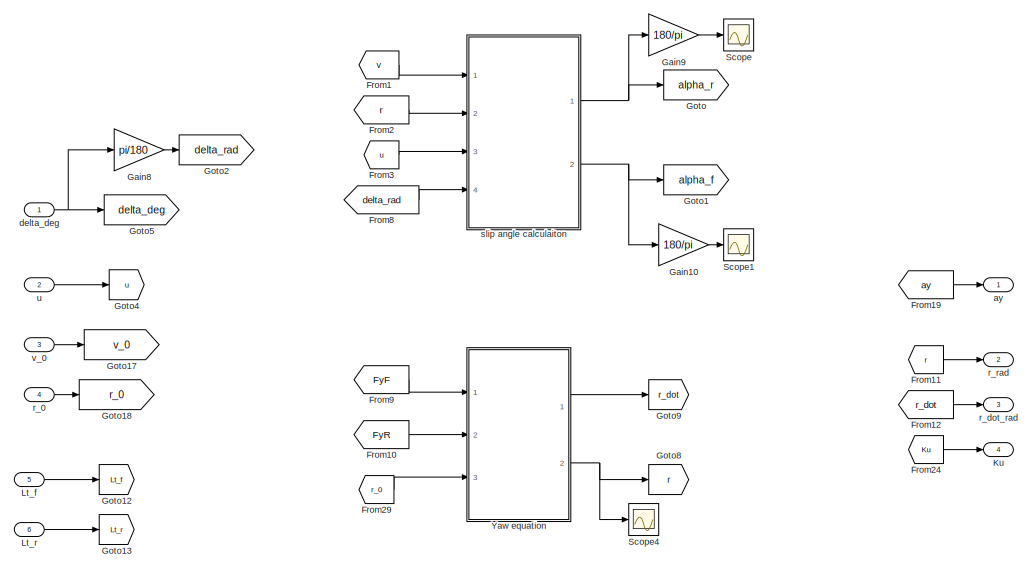
[diagram: MIMO 4DOF roll with LT/Bicycle model - part 1/2, full width, top band]
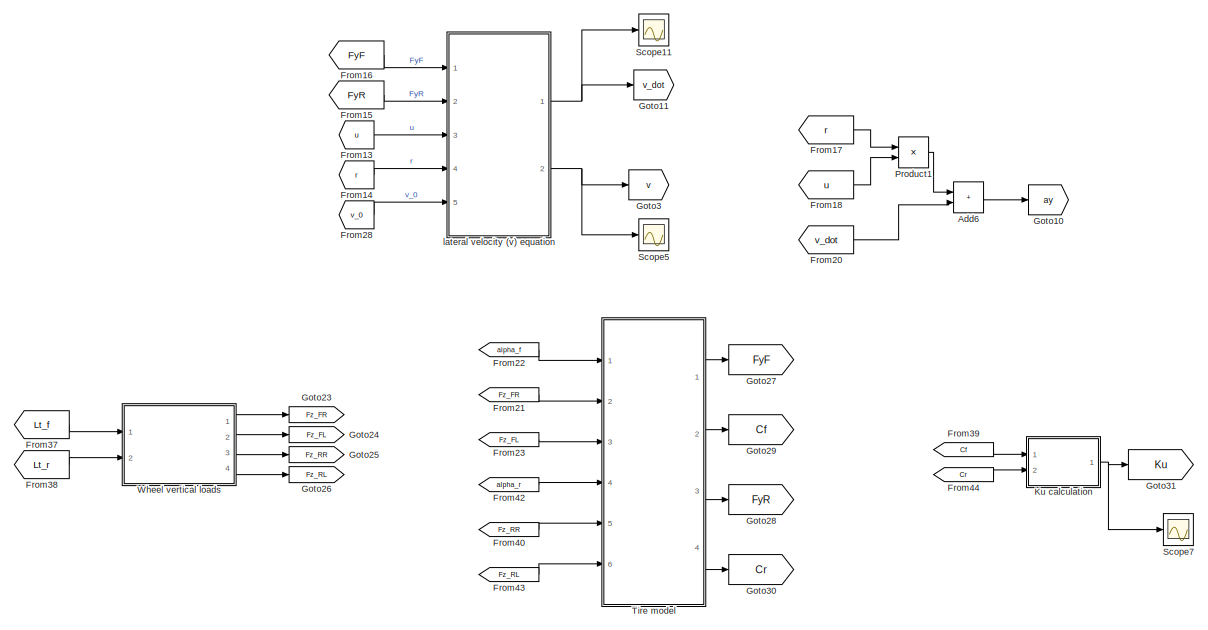
[diagram: MIMO 4DOF roll with LT/Bicycle model - part 2/2, full width, bottom band]
BLOCK [SubSystem] MIMO 4DOF roll with LT/Bicycle model
  Ports = [6, 4]
  RequestExecContextInheritance = off
BLOCK [Sum] MIMO 4DOF roll with LT/Bicycle model/Add6
  IconShape = rectangular
  Ports = [2, 1]
BLOCK [From] MIMO 4DOF roll with LT/Bicycle model/From1
  GotoTag = v
BLOCK [From] MIMO 4DOF roll with LT/Bicycle model/From10
  GotoTag = FyR
BLOCK [From] MIMO 4DOF roll with LT/Bicycle model/From11
  GotoTag = r
BLOCK [From] MIMO 4DOF roll with LT/Bicycle model/From12
  GotoTag = r_dot
BLOCK [From] MIMO 4DOF roll with LT/Bicycle model/From13
  GotoTag = u
BLOCK [From] MIMO 4DOF roll with LT/Bicycle model/From14
  GotoTag = r
BLOCK [From] MIMO 4DOF roll with LT/Bicycle model/From15
  GotoTag = FyR
BLOCK [From] MIMO 4DOF roll with LT/Bicycle model/From16
  GotoTag = FyF
BLOCK [From] MIMO 4DOF roll with LT/Bicycle model/From17
  GotoTag = r
BLOCK [From] MIMO 4DOF roll with LT/Bicycle model/From18
  GotoTag = u
BLOCK [From] MIMO 4DOF roll with LT/Bicycle model/From19
  GotoTag = ay
BLOCK [From] MIMO 4DOF roll with LT/Bicycle model/From2
  GotoTag = r
BLOCK [From] MIMO 4DOF roll with LT/Bicycle model/From20
  GotoTag = v_dot
BLOCK [From] MIMO 4DOF roll with LT/Bicycle model/From21
  GotoTag = Fz_FR
BLOCK [From] MIMO 4DOF roll with LT/Bicycle model/From22
  GotoTag = alpha_f
BLOCK [From] MIMO 4DOF roll with LT/Bicycle model/From23
  GotoTag = Fz_FL
BLOCK [From] MIMO 4DOF roll with LT/Bicycle model/From24
  GotoTag = Ku
BLOCK [From] MIMO 4DOF roll with LT/Bicycle model/From28
  GotoTag = v_0
BLOCK [From] MIMO 4DOF roll with LT/Bicycle model/From29
  GotoTag = r_0
BLOCK [From] MIMO 4DOF roll with LT/Bicycle model/From3
  GotoTag = u
BLOCK [From] MIMO 4DOF roll with LT/Bicycle model/From37
  GotoTag = Lt_f
BLOCK [From] MIMO 4DOF roll with LT/Bicycle model/From38
  GotoTag = Lt_r
BLOCK [From] MIMO 4DOF roll with LT/Bicycle model/From39
  GotoTag = Cf
BLOCK [From] MIMO 4DOF roll with LT/Bicycle model/From40
  GotoTag = Fz_RR
BLOCK [From] MIMO 4DOF roll with LT/Bicycle model/From42
  GotoTag = alpha_r
BLOCK [From] MIMO 4DOF roll with LT/Bicycle model/From43
  GotoTag = Fz_RL
BLOCK [From] MIMO 4DOF roll with LT/Bicycle model/From44
  GotoTag = Cr
BLOCK [From] MIMO 4DOF roll with LT/Bicycle model/From8
  GotoTag = delta_rad
BLOCK [From] MIMO 4DOF roll with LT/Bicycle model/From9
  GotoTag = FyF
BLOCK [Gain] MIMO 4DOF roll with LT/Bicycle model/Gain10
  Gain = 180/pi
BLOCK [Gain] MIMO 4DOF roll with LT/Bicycle model/Gain8
  Gain = pi/180
BLOCK [Gain] MIMO 4DOF roll with LT/Bicycle model/Gain9
  Gain = 180/pi
BLOCK [Goto] MIMO 4DOF roll with LT/Bicycle model/Goto
  GotoTag = alpha_r
BLOCK [Goto] MIMO 4DOF roll with LT/Bicycle model/Goto1
  GotoTag = alpha_f
BLOCK [Goto] MIMO 4DOF roll with LT/Bicycle model/Goto10
  GotoTag = ay
BLOCK [Goto] MIMO 4DOF roll with LT/Bicycle model/Goto11
  GotoTag = v_dot
BLOCK [Goto] MIMO 4DOF roll with LT/Bicycle model/Goto12
  GotoTag = Lt_f
BLOCK [Goto] MIMO 4DOF roll with LT/Bicycle model/Goto13
  GotoTag = Lt_r
BLOCK [Goto] MIMO 4DOF roll with LT/Bicycle model/Goto17
  GotoTag = v_0
BLOCK [Goto] MIMO 4DOF roll with LT/Bicycle model/Goto18
  GotoTag = r_0
BLOCK [Goto] MIMO 4DOF roll with LT/Bicycle model/Goto2
  GotoTag = delta_rad
BLOCK [Goto] MIMO 4DOF roll with LT/Bicycle model/Goto23
  GotoTag = Fz_FR
BLOCK [Goto] MIMO 4DOF roll with LT/Bicycle model/Goto24
  GotoTag = Fz_FL
BLOCK [Goto] MIMO 4DOF roll with LT/Bicycle model/Goto25
  GotoTag = Fz_RR
BLOCK [Goto] MIMO 4DOF roll with LT/Bicycle model/Goto26
  GotoTag = Fz_RL
BLOCK [Goto] MIMO 4DOF roll with LT/Bicycle model/Goto27
  GotoTag = FyF
BLOCK [Goto] MIMO 4DOF roll with LT/Bicycle model/Goto28
  GotoTag = FyR
BLOCK [Goto] MIMO 4DOF roll with LT/Bicycle model/Goto29
  GotoTag = Cf
BLOCK [Goto] MIMO 4DOF roll with LT/Bicycle model/Goto3
  GotoTag = v
BLOCK [Goto] MIMO 4DOF roll with LT/Bicycle model/Goto30
  GotoTag = Cr
BLOCK [Goto] MIMO 4DOF roll with LT/Bicycle model/Goto31
  GotoTag = Ku
BLOCK [Goto] MIMO 4DOF roll with LT/Bicycle model/Goto4
  GotoTag = u
BLOCK [Goto] MIMO 4DOF roll with LT/Bicycle model/Goto5
  Commented = on
  GotoTag = delta_deg
BLOCK [Goto] MIMO 4DOF roll with LT/Bicycle model/Goto8
  GotoTag = r
BLOCK [Goto] MIMO 4DOF roll with LT/Bicycle model/Goto9
  GotoTag = r_dot
BLOCK [Outport] MIMO 4DOF roll with LT/Bicycle model/Ku
  Port = 4
BLOCK [SubSystem] MIMO 4DOF roll with LT/Bicycle model/Ku calculation
  ErrorFcn = Stateflow.Translate.translate
  PermitHierarchicalResolution = ExplicitOnly
  Ports = [2, 1]
  RequestExecContextInheritance = off
  SFBlockType = MATLAB Function
  TreatAsAtomicUnit = on
BLOCK [Demux] MIMO 4DOF roll with LT/Bicycle model/Ku calculation/ Demux 
  Outputs = 1
  Ports = [1, 1]
BLOCK [S-Function] MIMO 4DOF roll with LT/Bicycle model/Ku calculation/ SFunction 
  EnableBusSupport = on
  FunctionName = sf_sfun
  PortCounts = [2 2]
  Ports = [2, 2]
  SFcnIsStateOwnerBlock = off
  SFunctionDeploymentMode = off
  Tag = Stateflow S-Function 8
BLOCK [Terminator] MIMO 4DOF roll with LT/Bicycle model/Ku calculation/ Terminator 
BLOCK [Inport] MIMO 4DOF roll with LT/Bicycle model/Ku calculation/Cf
BLOCK [Inport] MIMO 4DOF roll with LT/Bicycle model/Ku calculation/Cr
  Port = 2
BLOCK [Outport] MIMO 4DOF roll with LT/Bicycle model/Ku calculation/Ku
BLOCK [Inport] MIMO 4DOF roll with LT/Bicycle model/Lt_f
  Port = 5
BLOCK [Inport] MIMO 4DOF roll with LT/Bicycle model/Lt_r
  Port = 6
BLOCK [Product] MIMO 4DOF roll with LT/Bicycle model/Product1
  Ports = [2, 1]
BLOCK [Scope] MIMO 4DOF roll with LT/Bicycle model/Scope
  Floating = off
  NumInputPorts = 1
  Ports = [1]
  ScopeSpecificationString = Simulink.scopes.TimeScopeBlockCfg('CurrentConfiguration', extmgr.ConfigurationSet(extmgr.Configuration('Core','General UI',true,'FigureColor',[1 1 1]),extmgr.Configuration('Core','Source UI',true),extmgr.Configuration('Sources','WiredSimulink',true,'DataLoggingVariableName','ScopeData3'),extmgr.Configuration('Visuals','Time Domain',true,'SerializedDisplays',{struct('MinYLimReal','-0.13975','MaxYLi...<+1551ch>
BLOCK [Scope] MIMO 4DOF roll with LT/Bicycle model/Scope1
  Floating = off
  NumInputPorts = 1
  Ports = [1]
  ScopeSpecificationString = Simulink.scopes.TimeScopeBlockCfg('CurrentConfiguration', extmgr.ConfigurationSet(extmgr.Configuration('Core','General UI',true,'FigureColor',[1 1 1]),extmgr.Configuration('Core','Source UI',true),extmgr.Configuration('Sources','WiredSimulink',true,'DataLoggingVariableName','ScopeData4'),extmgr.Configuration('Visuals','Time Domain',true,'SerializedDisplays',{struct('MinYLimReal','-0.14511','MaxYLi...<+1530ch>
BLOCK [Scope] MIMO 4DOF roll with LT/Bicycle model/Scope11
  Floating = off
  NumInputPorts = 1
  Ports = [1]
  ScopeSpecificationString = Simulink.scopes.TimeScopeBlockCfg('CurrentConfiguration', extmgr.ConfigurationSet(extmgr.Configuration('Core','General UI',true,'FigureColor',[1 1 1]),extmgr.Configuration('Core','Source UI',true),extmgr.Configuration('Sources','WiredSimulink',true,'DataLoggingVariableName','ScopeData6'),extmgr.Configuration('Visuals','Time Domain',true,'SerializedDisplays',{struct('MinYLimReal','-0.02867','MaxYLi...<+1910ch>
BLOCK [Scope] MIMO 4DOF roll with LT/Bicycle model/Scope4
  Floating = off
  NumInputPorts = 1
  Ports = [1]
  ScopeSpecificationString = Simulink.scopes.TimeScopeBlockCfg('CurrentConfiguration', extmgr.ConfigurationSet(extmgr.Configuration('Core','General UI',true,'FigureColor',[1 1 1]),extmgr.Configuration('Core','Source UI',true),extmgr.Configuration('Sources','WiredSimulink',true,'DataLoggingVariableName','ScopeData5'),extmgr.Configuration('Visuals','Time Domain',true,'SerializedDisplays',{struct('MinYLimReal','-0.02794','MaxYLi...<+1560ch>
BLOCK [Scope] MIMO 4DOF roll with LT/Bicycle model/Scope5
  Floating = off
  NumInputPorts = 1
  Ports = [1]
  ScopeSpecificationString = Simulink.scopes.TimeScopeBlockCfg('CurrentConfiguration', extmgr.ConfigurationSet(extmgr.Configuration('Core','General UI',true,'FigureColor',[1 1 1]),extmgr.Configuration('Core','Source UI',true),extmgr.Configuration('Sources','WiredSimulink',true,'DataLoggingVariableName','ScopeData7'),extmgr.Configuration('Visuals','Time Domain',true,'SerializedDisplays',{struct('MinYLimReal','-0.0262','MaxYLim...<+1907ch>
BLOCK [Scope] MIMO 4DOF roll with LT/Bicycle model/Scope7
  Floating = off
  NumInputPorts = 1
  Ports = [1]
  ScopeSpecificationString = Simulink.scopes.TimeScopeBlockCfg('CurrentConfiguration', extmgr.ConfigurationSet(extmgr.Configuration('Core','General UI',true,'FigureColor',[1 1 1]),extmgr.Configuration('Core','Source UI',true),extmgr.Configuration('Sources','WiredSimulink',true,'DataLoggingVariableName','ScopeData1'),extmgr.Configuration('Visuals','Time Domain',true,'SerializedDisplays',{struct('MinYLimReal','-3.27479','MaxYLi...<+1881ch>
BLOCK [SubSystem] MIMO 4DOF roll with LT/Bicycle model/Tire model
  AttributesFormatString = %<MinAlgLoopOccurrences>
  Ports = [6, 4]
  RequestExecContextInheritance = off
BLOCK [Sum] MIMO 4DOF roll with LT/Bicycle model/Tire model/Add
  IconShape = rectangular
  Ports = [2, 1]
BLOCK [Sum] MIMO 4DOF roll with LT/Bicycle model/Tire model/Add1
  IconShape = rectangular
  Ports = [2, 1]
BLOCK [Sum] MIMO 4DOF roll with LT/Bicycle model/Tire model/Add2
  IconShape = rectangular
  Ports = [2, 1]
BLOCK [Sum] MIMO 4DOF roll with LT/Bicycle model/Tire model/Add3
  IconShape = rectangular
  Ports = [2, 1]
BLOCK [Outport] MIMO 4DOF roll with LT/Bicycle model/Tire model/Cf
  Port = 2
BLOCK [Outport] MIMO 4DOF roll with LT/Bicycle model/Tire model/Cr
  Port = 4
BLOCK [SubSystem] MIMO 4DOF roll with LT/Bicycle model/Tire model/Front tire formula
  AttributesFormatString = %<MinAlgLoopOccurrences>
  ErrorFcn = Stateflow.Translate.translate
  MinAlgLoopOccurrences = on
  PermitHierarchicalResolution = ExplicitOnly
  Ports = [2, 2]
  RequestExecContextInheritance = off
  SFBlockType = MATLAB Function
  TreatAsAtomicUnit = on
BLOCK [Demux] MIMO 4DOF roll with LT/Bicycle model/Tire model/Front tire formula/ Demux 
  Outputs = 1
  Ports = [1, 1]
BLOCK [S-Function] MIMO 4DOF roll with LT/Bicycle model/Tire model/Front tire formula/ SFunction 
  EnableBusSupport = on
  FunctionName = sf_sfun
  PortCounts = [2 3]
  Ports = [2, 3]
  SFcnIsStateOwnerBlock = off
  SFunctionDeploymentMode = off
  Tag = Stateflow S-Function 9
BLOCK [Terminator] MIMO 4DOF roll with LT/Bicycle model/Tire model/Front tire formula/ Terminator 
BLOCK [Outport] MIMO 4DOF roll with LT/Bicycle model/Tire model/Front tire formula/C_f
  Port = 2
BLOCK [Outport] MIMO 4DOF roll with LT/Bicycle model/Tire model/Front tire formula/Fy
BLOCK [Inport] MIMO 4DOF roll with LT/Bicycle model/Tire model/Front tire formula/Fz
  Port = 2
BLOCK [Inport] MIMO 4DOF roll with LT/Bicycle model/Tire model/Front tire formula/alpha_f
BLOCK [SubSystem] MIMO 4DOF roll with LT/Bicycle model/Tire model/Front tire formula1
  ErrorFcn = Stateflow.Translate.translate
  MinAlgLoopOccurrences = on
  PermitHierarchicalResolution = ExplicitOnly
  Ports = [2, 2]
  RequestExecContextInheritance = off
  SFBlockType = MATLAB Function
  TreatAsAtomicUnit = on
BLOCK [Demux] MIMO 4DOF roll with LT/Bicycle model/Tire model/Front tire formula1/ Demux 
  Outputs = 1
  Ports = [1, 1]
BLOCK [S-Function] MIMO 4DOF roll with LT/Bicycle model/Tire model/Front tire formula1/ SFunction 
  EnableBusSupport = on
  FunctionName = sf_sfun
  PortCounts = [2 3]
  Ports = [2, 3]
  SFcnIsStateOwnerBlock = off
  SFunctionDeploymentMode = off
  Tag = Stateflow S-Function 10
BLOCK [Terminator] MIMO 4DOF roll with LT/Bicycle model/Tire model/Front tire formula1/ Terminator 
BLOCK [Outport] MIMO 4DOF roll with LT/Bicycle model/Tire model/Front tire formula1/C_f
  Port = 2
BLOCK [Outport] MIMO 4DOF roll with LT/Bicycle model/Tire model/Front tire formula1/Fy
BLOCK [Inport] MIMO 4DOF roll with LT/Bicycle model/Tire model/Front tire formula1/Fz
  Port = 2
BLOCK [Inport] MIMO 4DOF roll with LT/Bicycle model/Tire model/Front tire formula1/alpha_f
BLOCK [Outport] MIMO 4DOF roll with LT/Bicycle model/Tire model/FyF
BLOCK [Outport] MIMO 4DOF roll with LT/Bicycle model/Tire model/FyR
  Port = 3
BLOCK [Inport] MIMO 4DOF roll with LT/Bicycle model/Tire model/Fz_FL
  Port = 3
BLOCK [Inport] MIMO 4DOF roll with LT/Bicycle model/Tire model/Fz_FR
  Port = 2
BLOCK [Inport] MIMO 4DOF roll with LT/Bicycle model/Tire model/Fz_RL
  Port = 6
BLOCK [Inport] MIMO 4DOF roll with LT/Bicycle model/Tire model/Fz_RR
  Port = 5
BLOCK [SubSystem] MIMO 4DOF roll with LT/Bicycle model/Tire model/Rear tire formula
  ErrorFcn = Stateflow.Translate.translate
  MinAlgLoopOccurrences = on
  PermitHierarchicalResolution = ExplicitOnly
  Ports = [2, 2]
  RequestExecContextInheritance = off
  SFBlockType = MATLAB Function
  TreatAsAtomicUnit = on
BLOCK [Demux] MIMO 4DOF roll with LT/Bicycle model/Tire model/Rear tire formula/ Demux 
  Outputs = 1
  Ports = [1, 1]
BLOCK [S-Function] MIMO 4DOF roll with LT/Bicycle model/Tire model/Rear tire formula/ SFunction 
  EnableBusSupport = on
  FunctionName = sf_sfun
  PortCounts = [2 3]
  Ports = [2, 3]
  SFcnIsStateOwnerBlock = off
  SFunctionDeploymentMode = off
  Tag = Stateflow S-Function 11
BLOCK [Terminator] MIMO 4DOF roll with LT/Bicycle model/Tire model/Rear tire formula/ Terminator 
BLOCK [Outport] MIMO 4DOF roll with LT/Bicycle model/Tire model/Rear tire formula/C_r
  Port = 2
BLOCK [Outport] MIMO 4DOF roll with LT/Bicycle model/Tire model/Rear tire formula/Fy
BLOCK [Inport] MIMO 4DOF roll with LT/Bicycle model/Tire model/Rear tire formula/Fz
  Port = 2
BLOCK [Inport] MIMO 4DOF roll with LT/Bicycle model/Tire model/Rear tire formula/alpha_r
BLOCK [SubSystem] MIMO 4DOF roll with LT/Bicycle model/Tire model/Rear tire formula1
  ErrorFcn = Stateflow.Translate.translate
  MinAlgLoopOccurrences = on
  PermitHierarchicalResolution = ExplicitOnly
  Ports = [2, 2]
  RequestExecContextInheritance = off
  SFBlockType = MATLAB Function
  TreatAsAtomicUnit = on
BLOCK [Demux] MIMO 4DOF roll with LT/Bicycle model/Tire model/Rear tire formula1/ Demux 
  Outputs = 1
  Ports = [1, 1]
BLOCK [S-Function] MIMO 4DOF roll with LT/Bicycle model/Tire model/Rear tire formula1/ SFunction 
  EnableBusSupport = on
  FunctionName = sf_sfun
  PortCounts = [2 3]
  Ports = [2, 3]
  SFcnIsStateOwnerBlock = off
  SFunctionDeploymentMode = off
  Tag = Stateflow S-Function 12
BLOCK [Terminator] MIMO 4DOF roll with LT/Bicycle model/Tire model/Rear tire formula1/ Terminator 
BLOCK [Outport] MIMO 4DOF roll with LT/Bicycle model/Tire model/Rear tire formula1/C_r
  Port = 2
BLOCK [Outport] MIMO 4DOF roll with LT/Bicycle model/Tire model/Rear tire formula1/Fy
BLOCK [Inport] MIMO 4DOF roll with LT/Bicycle model/Tire model/Rear tire formula1/Fz
  Port = 2
BLOCK [Inport] MIMO 4DOF roll with LT/Bicycle model/Tire model/Rear tire formula1/alpha_r
BLOCK [Scope] MIMO 4DOF roll with LT/Bicycle model/Tire model/Scope1
  Floating = off
  NumInputPorts = 2
  Ports = [2]
  ScopeSpecificationString = Simulink.scopes.TimeScopeBlockCfg('CurrentConfiguration', extmgr.ConfigurationSet(extmgr.Configuration('Core','General UI',true,'FigureColor',[1 1 1]),extmgr.Configuration('Core','Source UI',true),extmgr.Configuration('Sources','WiredSimulink',true,'DataLoggingVariableName','ScopeData3'),extmgr.Configuration('Visuals','Time Domain',true,'SerializedDisplays',{struct('MinYLimReal','-1508.09061','Max...<+1567ch>
BLOCK [Inport] MIMO 4DOF roll with LT/Bicycle model/Tire model/alpha_f
BLOCK [Inport] MIMO 4DOF roll with LT/Bicycle model/Tire model/alpha_r
  Port = 4
BLOCK [SubSystem] MIMO 4DOF roll with LT/Bicycle model/Wheel vertical loads
  AttributesFormatString = %<MinAlgLoopOccurrences>
  Ports = [2, 4]
  RequestExecContextInheritance = off
BLOCK [Constant] MIMO 4DOF roll with LT/Bicycle model/Wheel vertical loads/Constant
  Value = FzF_0_w
BLOCK [Constant] MIMO 4DOF roll with LT/Bicycle model/Wheel vertical loads/Constant1
  Value = FzR_0_w
BLOCK [Outport] MIMO 4DOF roll with LT/Bicycle model/Wheel vertical loads/Fz_FL
  Port = 2
BLOCK [Outport] MIMO 4DOF roll with LT/Bicycle model/Wheel vertical loads/Fz_FR
BLOCK [Outport] MIMO 4DOF roll with LT/Bicycle model/Wheel vertical loads/Fz_RL
  Port = 4
BLOCK [Outport] MIMO 4DOF roll with LT/Bicycle model/Wheel vertical loads/Fz_RR
  Port = 3
BLOCK [Inport] MIMO 4DOF roll with LT/Bicycle model/Wheel vertical loads/Lt_f
BLOCK [Inport] MIMO 4DOF roll with LT/Bicycle model/Wheel vertical loads/Lt_r
  Port = 2
BLOCK [Sum] MIMO 4DOF roll with LT/Bicycle model/Wheel vertical loads/Sum
  Inputs = |++
  Ports = [2, 1]
BLOCK [Sum] MIMO 4DOF roll with LT/Bicycle model/Wheel vertical loads/Sum1
  Inputs = |++
  Ports = [2, 1]
BLOCK [Sum] MIMO 4DOF roll with LT/Bicycle model/Wheel vertical loads/Sum2
  Inputs = +-|
  Ports = [2, 1]
BLOCK [Sum] MIMO 4DOF roll with LT/Bicycle model/Wheel vertical loads/Sum3
  Inputs = +-|
  Ports = [2, 1]
BLOCK [SubSystem] MIMO 4DOF roll with LT/Bicycle model/Yaw equation
  Ports = [3, 2]
  RequestExecContextInheritance = off
BLOCK [Sum] MIMO 4DOF roll with LT/Bicycle model/Yaw equation/Add3
  IconShape = rectangular
  Inputs = +-
  Ports = [2, 1]
BLOCK [Inport] MIMO 4DOF roll with LT/Bicycle model/Yaw equation/FyF
BLOCK [Inport] MIMO 4DOF roll with LT/Bicycle model/Yaw equation/FyR
  Port = 2
BLOCK [Gain] MIMO 4DOF roll with LT/Bicycle model/Yaw equation/Gain4
  Gain = 1/Iz
BLOCK [Gain] MIMO 4DOF roll with LT/Bicycle model/Yaw equation/Gain5
  Gain = a
BLOCK [Gain] MIMO 4DOF roll with LT/Bicycle model/Yaw equation/Gain6
  Gain = b
BLOCK [Integrator] MIMO 4DOF roll with LT/Bicycle model/Yaw equation/Integrator
  InitialConditionSource = external
  Ports = [2, 1]
BLOCK [Outport] MIMO 4DOF roll with LT/Bicycle model/Yaw equation/r
  Port = 2
BLOCK [Inport] MIMO 4DOF roll with LT/Bicycle model/Yaw equation/r_0
  Port = 3
BLOCK [Outport] MIMO 4DOF roll with LT/Bicycle model/Yaw equation/r_dot
BLOCK [Outport] MIMO 4DOF roll with LT/Bicycle model/ay
BLOCK [Inport] MIMO 4DOF roll with LT/Bicycle model/delta_deg
BLOCK [SubSystem] MIMO 4DOF roll with LT/Bicycle model/lateral velocity (v) equation
  Ports = [5, 2]
  RequestExecContextInheritance = off
BLOCK [Sum] MIMO 4DOF roll with LT/Bicycle model/lateral velocity (v) equation/Add4
  IconShape = rectangular
  Inputs = +-
  Ports = [2, 1]
BLOCK [Sum] MIMO 4DOF roll with LT/Bicycle model/lateral velocity (v) equation/Add5
  IconShape = rectangular
  Ports = [2, 1]
BLOCK [Inport] MIMO 4DOF roll with LT/Bicycle model/lateral velocity (v) equation/FyF
BLOCK [Inport] MIMO 4DOF roll with LT/Bicycle model/lateral velocity (v) equation/FyR
  Port = 2
BLOCK [Gain] MIMO 4DOF roll with LT/Bicycle model/lateral velocity (v) equation/Gain7
  Gain = 1/M
BLOCK [Integrator] MIMO 4DOF roll with LT/Bicycle model/lateral velocity (v) equation/Integrator1
  InitialConditionSource = external
  Ports = [2, 1]
BLOCK [Product] MIMO 4DOF roll with LT/Bicycle model/lateral velocity (v) equation/Product
  Ports = [2, 1]
BLOCK [Inport] MIMO 4DOF roll with LT/Bicycle model/lateral velocity (v) equation/r
  Port = 4
BLOCK [Inport] MIMO 4DOF roll with LT/Bicycle model/lateral velocity (v) equation/u
  Port = 3
BLOCK [Outport] MIMO 4DOF roll with LT/Bicycle model/lateral velocity (v) equation/v
  Port = 2
BLOCK [Inport] MIMO 4DOF roll with LT/Bicycle model/lateral velocity (v) equation/v_0
  Port = 5
BLOCK [Outport] MIMO 4DOF roll with LT/Bicycle model/lateral velocity (v) equation/v_dot
BLOCK [Inport] MIMO 4DOF roll with LT/Bicycle model/r_0
  Port = 4
BLOCK [Outport] MIMO 4DOF roll with LT/Bicycle model/r_dot_rad
  Port = 3
BLOCK [Outport] MIMO 4DOF roll with LT/Bicycle model/r_rad
  Port = 2
BLOCK [SubSystem] MIMO 4DOF roll with LT/Bicycle model/slip angle calculaiton
  Ports = [4, 2]
  RequestExecContextInheritance = off
BLOCK [Sum] MIMO 4DOF roll with LT/Bicycle model/slip angle calculaiton/Add
  IconShape = rectangular
  Inputs = -+
  Ports = [2, 1]
BLOCK [Sum] MIMO 4DOF roll with LT/Bicycle model/slip angle calculaiton/Add1
  IconShape = rectangular
  Ports = [2, 1]
BLOCK [Sum] MIMO 4DOF roll with LT/Bicycle model/slip angle calculaiton/Add2
  IconShape = rectangular
  Inputs = +-
  Ports = [2, 1]
BLOCK [Product] MIMO 4DOF roll with LT/Bicycle model/slip angle calculaiton/Divide
  Inputs = */
  Ports = [2, 1]
BLOCK [Product] MIMO 4DOF roll with LT/Bicycle model/slip angle calculaiton/Divide1
  Inputs = */
  Ports = [2, 1]
BLOCK [Gain] MIMO 4DOF roll with LT/Bicycle model/slip angle calculaiton/Gain
  Gain = b
BLOCK [Gain] MIMO 4DOF roll with LT/Bicycle model/slip angle calculaiton/Gain1
  Gain = a
BLOCK [Outport] MIMO 4DOF roll with LT/Bicycle model/slip angle calculaiton/alpha_f
  Port = 2
BLOCK [Outport] MIMO 4DOF roll with LT/Bicycle model/slip angle calculaiton/alpha_r
BLOCK [Inport] MIMO 4DOF roll with LT/Bicycle model/slip angle calculaiton/delta_rad
  Port = 4
BLOCK [Inport] MIMO 4DOF roll with LT/Bicycle model/slip angle calculaiton/r
  Port = 2
BLOCK [Inport] MIMO 4DOF roll with LT/Bicycle model/slip angle calculaiton/u
  Port = 3
BLOCK [Inport] MIMO 4DOF roll with LT/Bicycle model/slip angle calculaiton/v
BLOCK [Inport] MIMO 4DOF roll with LT/Bicycle model/u
  Port = 2
BLOCK [Inport] MIMO 4DOF roll with LT/Bicycle model/v_0
  Port = 3
BLOCK [Constant] MIMO 4DOF roll with LT/Constant1
  Value = 0
BLOCK [Constant] MIMO 4DOF roll with LT/Constant2
  Value = 0
BLOCK [Demux] MIMO 4DOF roll with LT/Demux
  Outputs = 10
  Ports = [1, 10]
BLOCK [Demux] MIMO 4DOF roll with LT/Demux1
  Outputs = 8
  Ports = [1, 8]
BLOCK [Gain] MIMO 4DOF roll with LT/Gain2
BLOCK [Outport] MIMO 4DOF roll with LT/Ku
  Port = 8
BLOCK [Mux] MIMO 4DOF roll with LT/Mux
  DisplayOption = bar
  Inputs = 8
  Ports = [8, 1]
BLOCK [Scope] MIMO 4DOF roll with LT/Scope5
  Floating = off
  NumInputPorts = 1
  Ports = [1]
  ScopeSpecificationString = Simulink.scopes.TimeScopeBlockCfg('CurrentConfiguration', extmgr.ConfigurationSet(extmgr.Configuration('Core','General UI',true,'FigureColor',[1 1 1]),extmgr.Configuration('Core','Source UI',true),extmgr.Configuration('Sources','WiredSimulink',true,'DataLoggingVariableName','ScopeData1'),extmgr.Configuration('Visuals','Time Domain',true,'SerializedDisplays',{struct('MinYLimReal','-0.48032','MaxYLi...<+1620ch>
BLOCK [Inport] MIMO 4DOF roll with LT/T_ARB_f
  Port = 3
BLOCK [Inport] MIMO 4DOF roll with LT/T_ARB_r
  Port = 4
BLOCK [Outport] MIMO 4DOF roll with LT/ay
BLOCK [Inport] MIMO 4DOF roll with LT/delta_deg
BLOCK [Outport] MIMO 4DOF roll with LT/phi
  Port = 4
BLOCK [Outport] MIMO 4DOF roll with LT/phi_dot
  Port = 5
BLOCK [Outport] MIMO 4DOF roll with LT/r_dot_rad
  Port = 3
BLOCK [Outport] MIMO 4DOF roll with LT/r_rad
  Port = 2
BLOCK [Inport] MIMO 4DOF roll with LT/u
  Port = 2
BLOCK [Inport] MIMO 4DOF roll with LT/x0
  Port = 5
BLOCK [Outport] MIMO 4DOF roll with LT/zc
  Port = 6
BLOCK [Outport] MIMO 4DOF roll with LT/zc_dot
  Port = 7
BLOCK [Mux] Mux1
  DisplayOption = bar
  Inputs = 10
  Ports = [10, 1]
BLOCK [Scope] Scope1
  Floating = off
  NumInputPorts = 2
  Ports = [2]
  ScopeSpecificationString = Simulink.scopes.TimeScopeBlockCfg('CurrentConfiguration', extmgr.ConfigurationSet(extmgr.Configuration('Core','General UI',true,'FigureColor',[1 1 1]),extmgr.Configuration('Core','Source UI',true),extmgr.Configuration('Sources','WiredSimulink',true,'DataLoggingVariableName','ScopeData3'),extmgr.Configuration('Visuals','Time Domain',true,'SerializedDisplays',{struct('MinYLimReal','1.46248','MaxYLim...<+1671ch>
BLOCK [Scope] Scope2
  Floating = off
  NumInputPorts = 1
  Ports = [1]
  ScopeSpecificationString = Simulink.scopes.TimeScopeBlockCfg('CurrentConfiguration', extmgr.ConfigurationSet(extmgr.Configuration('Core','General UI',true,'FigureColor',[1 1 1]),extmgr.Configuration('Core','Source UI',true),extmgr.Configuration('Sources','WiredSimulink',true,'DataLoggingVariableName','ScopeData1'),extmgr.Configuration('Visuals','Time Domain',true,'SerializedDisplays',{struct('MinYLimReal','2.22671','MaxYLim...<+1709ch>
BLOCK [Scope] Scope3
  Floating = off
  NumInputPorts = 1
  Ports = [1]
  ScopeSpecificationString = Simulink.scopes.TimeScopeBlockCfg('CurrentConfiguration', extmgr.ConfigurationSet(extmgr.Configuration('Core','General UI',true,'FigureColor',[1 1 1]),extmgr.Configuration('Core','Source UI',true),extmgr.Configuration('Sources','WiredSimulink',true,'DataLoggingVariableName','ScopeData1'),extmgr.Configuration('Visuals','Time Domain',true,'SerializedDisplays',{struct('MinYLimReal','2.22671','MaxYLim...<+1709ch>
BLOCK [Scope] Scope4
  Floating = off
  NumInputPorts = 2
  Ports = [2]
  ScopeSpecificationString = Simulink.scopes.TimeScopeBlockCfg('CurrentConfiguration', extmgr.ConfigurationSet(extmgr.Configuration('Core','General UI',true,'FigureColor',[1 1 1]),extmgr.Configuration('Core','Source UI',true),extmgr.Configuration('Sources','WiredSimulink',true,'DataLoggingVariableName','ScopeData4'),extmgr.Configuration('Visuals','Time Domain',true,'SerializedDisplays',{struct('MinYLimReal','0.22132','MaxYLim...<+1660ch>
BLOCK [Scope] Scope5
  Floating = off
  NumInputPorts = 2
  Ports = [2]
  ScopeSpecificationString = Simulink.scopes.TimeScopeBlockCfg('CurrentConfiguration', extmgr.ConfigurationSet(extmgr.Configuration('Core','General UI',true,'FigureColor',[1 1 1]),extmgr.Configuration('Core','Source UI',true),extmgr.Configuration('Sources','WiredSimulink',true,'DataLoggingVariableName','ScopeData2'),extmgr.Configuration('Visuals','Time Domain',true,'SerializedDisplays',{struct('MinYLimReal','0.02987','MaxYLim...<+1638ch>
BLOCK [Scope] Scope6
  Floating = off
  NumInputPorts = 2
  Ports = [2]
  ScopeSpecificationString = Simulink.scopes.TimeScopeBlockCfg('CurrentConfiguration', extmgr.ConfigurationSet(extmgr.Configuration('Core','General UI',true,'FigureColor',[1 1 1]),extmgr.Configuration('Core','Source UI',true),extmgr.Configuration('Sources','WiredSimulink',true,'DataLoggingVariableName','ScopeData1'),extmgr.Configuration('Visuals','Time Domain',true,'SerializedDisplays',{struct('MinYLimReal','0.00013','MaxYLim...<+1631ch>
BLOCK [Scope] Scope8
  Floating = off
  NumInputPorts = 1
  Ports = [1]
  ScopeSpecificationString = Simulink.scopes.TimeScopeBlockCfg('CurrentConfiguration', extmgr.ConfigurationSet(extmgr.Configuration('Core','General UI',true,'FigureColor',[1 1 1]),extmgr.Configuration('Core','Source UI',true),extmgr.Configuration('Sources','WiredSimulink',true,'DataLoggingVariableName','ScopeData3'),extmgr.Configuration('Visuals','Time Domain',true,'SerializedDisplays',{struct('MinYLimReal','0.000222','MaxYLi...<+1739ch>
BLOCK [Step] Step
  After = U0(3)+1000
  Before = U0(3)
  SampleTime = 0
  Time = 2
BLOCK [Sum] Sum
  Inputs = |+-
  Ports = [2, 1]
BLOCK [Sum] Sum1
  Inputs = |++
  Ports = [2, 1]
BLOCK [Sum] Sum3
  Inputs = |+-
  Ports = [2, 1]
BLOCK [Sum] Sum4
  Inputs = |++
  Ports = [2, 1]
BLOCK [Sum] Sum5
  Inputs = |+-
  Ports = [2, 1]
BLOCK [Sum] Sum6
  Inputs = |++
  Ports = [2, 1]
ANNOTATION MIMO 4DOF roll with LT/4 DOF model: Load transfer check
LINE Constant10:1 -> MIMO 4DOF roll with LT:4
LINE Constant11:1 -> Sum3:2
LINE Constant12:1 -> Sum5:2
LINE Constant13:1 -> Sum6:2
LINE Constant14:1 -> Mux1:3
LINE Constant15:1 -> Mux1:4
LINE Constant16:1 -> Mux1:5
LINE Constant17:1 -> Mux1:6
LINE Constant18:1 -> Mux1:7
LINE Constant19:1 -> Mux1:8
LINE Constant1:1 -> Sum1:2
LINE Constant2:1 -> Sum:2
LINE Constant3:1 -> Mux1:1
LINE Constant4:1 -> MIMO 4DOF roll with LT:1
LINE Constant5:1 -> Mux1:9
LINE Constant6:1 -> Mux1:10
LINE Constant7:1 -> Mux1:2
LINE Constant9:1 -> Sum4:2
LINE Constant:1 -> MIMO 4DOF roll with LT:2
LINE From1:1 -> Scope4:1
LINE From2:1 -> Sum5:1
LINE From3:1 -> Scope6:1
LINE From:1 -> Sum3:1
LINE Gain1:1 -> Scope1:2
NET Gain:1 -> Scope1:1, Scope3:1
LINE LTI System1:1 -> Sum4:1
LINE LTI System2:1 -> Sum6:1
LINE LTI System:1 -> Sum1:1
LINE MIMO 4DOF roll with LT/4 DOF model/Add12:1 -> MIMO 4DOF roll with LT/4 DOF model/Scope6:3
LINE MIMO 4DOF roll with LT/4 DOF model/Add13:1 -> MIMO 4DOF roll with LT/4 DOF model/Scope6:1
LINE MIMO 4DOF roll with LT/4 DOF model/Add3:1 -> MIMO 4DOF roll with LT/4 DOF model/Gain9:1
LINE MIMO 4DOF roll with LT/4 DOF model/Add5:1 -> MIMO 4DOF roll with LT/4 DOF model/Add12:1
NET MIMO 4DOF roll with LT/4 DOF model/Damper lookup tables/Add12:1 -> MIMO 4DOF roll with LT/4 DOF model/Damper lookup tables/Front Right Spring:1, MIMO 4DOF roll with LT/4 DOF model/Damper lookup tables/Rear Right Spring1:1
NET MIMO 4DOF roll with LT/4 DOF model/Damper lookup tables/Add13:1 -> MIMO 4DOF roll with LT/4 DOF model/Damper lookup tables/Front Left Spring:1, MIMO 4DOF roll with LT/4 DOF model/Damper lookup tables/Rear Left Spring:1
LINE MIMO 4DOF roll with LT/4 DOF model/Damper lookup tables/Add14:1 -> MIMO 4DOF roll with LT/4 DOF model/Damper lookup tables/F_damp_1:1
LINE MIMO 4DOF roll with LT/4 DOF model/Damper lookup tables/Add15:1 -> MIMO 4DOF roll with LT/4 DOF model/Damper lookup tables/F_damp_2:1
NET MIMO 4DOF roll with LT/4 DOF model/Damper lookup tables/Front Left Spring:1 -> MIMO 4DOF roll with LT/4 DOF model/Damper lookup tables/Add15:1, MIMO 4DOF roll with LT/4 DOF model/Damper lookup tables/Ff_damp_2:1
NET MIMO 4DOF roll with LT/4 DOF model/Damper lookup tables/Front Right Spring:1 -> MIMO 4DOF roll with LT/4 DOF model/Damper lookup tables/Add14:1, MIMO 4DOF roll with LT/4 DOF model/Damper lookup tables/Ff_damp_1:1
NET MIMO 4DOF roll with LT/4 DOF model/Damper lookup tables/Rear Left Spring:1 -> MIMO 4DOF roll with LT/4 DOF model/Damper lookup tables/Add15:2, MIMO 4DOF roll with LT/4 DOF model/Damper lookup tables/Fr_damp_2:1
NET MIMO 4DOF roll with LT/4 DOF model/Damper lookup tables/Rear Right Spring1:1 -> MIMO 4DOF roll with LT/4 DOF model/Damper lookup tables/Add14:2, MIMO 4DOF roll with LT/4 DOF model/Damper lookup tables/Fr_damp_1:1
LINE MIMO 4DOF roll with LT/4 DOF model/Damper lookup tables/zs1_dot:1 -> MIMO 4DOF roll with LT/4 DOF model/Damper lookup tables/Add12:2
LINE MIMO 4DOF roll with LT/4 DOF model/Damper lookup tables/zs2_dot:1 -> MIMO 4DOF roll with LT/4 DOF model/Damper lookup tables/Add13:2
LINE MIMO 4DOF roll with LT/4 DOF model/Damper lookup tables/zu1_dot:1 -> MIMO 4DOF roll with LT/4 DOF model/Damper lookup tables/Add12:1
LINE MIMO 4DOF roll with LT/4 DOF model/Damper lookup tables/zu2_dot:1 -> MIMO 4DOF roll with LT/4 DOF model/Damper lookup tables/Add13:1
LINE MIMO 4DOF roll with LT/4 DOF model/Damper lookup tables:1 -> MIMO 4DOF roll with LT/4 DOF model/Goto24:1
LINE MIMO 4DOF roll with LT/4 DOF model/Damper lookup tables:2 -> MIMO 4DOF roll with LT/4 DOF model/Goto25:1
LINE MIMO 4DOF roll with LT/4 DOF model/Damper lookup tables:3 -> MIMO 4DOF roll with LT/4 DOF model/Goto44:1
LINE MIMO 4DOF roll with LT/4 DOF model/Damper lookup tables:4 -> MIMO 4DOF roll with LT/4 DOF model/Goto45:1
LINE MIMO 4DOF roll with LT/4 DOF model/Damper lookup tables:5 -> MIMO 4DOF roll with LT/4 DOF model/Goto46:1
LINE MIMO 4DOF roll with LT/4 DOF model/Damper lookup tables:6 -> MIMO 4DOF roll with LT/4 DOF model/Goto47:1
LINE MIMO 4DOF roll with LT/4 DOF model/From10:1 -> MIMO 4DOF roll with LT/4 DOF model/body vertical displacement and roll dynamics:5
LINE MIMO 4DOF roll with LT/4 DOF model/From11:1 -> MIMO 4DOF roll with LT/4 DOF model/zc:1
LINE MIMO 4DOF roll with LT/4 DOF model/From12:1 -> MIMO 4DOF roll with LT/4 DOF model/Unsprung masses vertical dynamics:2
LINE MIMO 4DOF roll with LT/4 DOF model/From13:1 -> MIMO 4DOF roll with LT/4 DOF model/Unsprung masses vertical dynamics:3
LINE MIMO 4DOF roll with LT/4 DOF model/From14:1 -> MIMO 4DOF roll with LT/4 DOF model/Unsprung masses vertical dynamics:4
LINE MIMO 4DOF roll with LT/4 DOF model/From15:1 -> MIMO 4DOF roll with LT/4 DOF model/Unsprung masses vertical dynamics:7
LINE MIMO 4DOF roll with LT/4 DOF model/From16:1 -> MIMO 4DOF roll with LT/4 DOF model/Unsprung masses vertical dynamics:8
LINE MIMO 4DOF roll with LT/4 DOF model/From17:1 -> MIMO 4DOF roll with LT/4 DOF model/Unsprung masses vertical dynamics:9
LINE MIMO 4DOF roll with LT/4 DOF model/From1:1 -> MIMO 4DOF roll with LT/4 DOF model/body vertical displacement and roll dynamics:2
LINE MIMO 4DOF roll with LT/4 DOF model/From20:1 -> MIMO 4DOF roll with LT/4 DOF model/zs1, zs2 position and velocity:3
LINE MIMO 4DOF roll with LT/4 DOF model/From21:1 -> MIMO 4DOF roll with LT/4 DOF model/zs1, zs2 position and velocity:4
LINE MIMO 4DOF roll with LT/4 DOF model/From2:1 -> MIMO 4DOF roll with LT/4 DOF model/zs1, zs2 position and velocity:1
LINE MIMO 4DOF roll with LT/4 DOF model/From31:1 -> MIMO 4DOF roll with LT/4 DOF model/zc_dot:1
LINE MIMO 4DOF roll with LT/4 DOF model/From38:1 -> MIMO 4DOF roll with LT/4 DOF model/Springs lookup tables:2
LINE MIMO 4DOF roll with LT/4 DOF model/From39:1 -> MIMO 4DOF roll with LT/4 DOF model/Springs lookup tables:1
LINE MIMO 4DOF roll with LT/4 DOF model/From40:1 -> MIMO 4DOF roll with LT/4 DOF model/Springs lookup tables:4
LINE MIMO 4DOF roll with LT/4 DOF model/From41:1 -> MIMO 4DOF roll with LT/4 DOF model/Springs lookup tables:3
LINE MIMO 4DOF roll with LT/4 DOF model/From42:1 -> MIMO 4DOF roll with LT/4 DOF model/body vertical displacement and roll dynamics:3
LINE MIMO 4DOF roll with LT/4 DOF model/From43:1 -> MIMO 4DOF roll with LT/4 DOF model/body vertical displacement and roll dynamics:4
LINE MIMO 4DOF roll with LT/4 DOF model/From44:1 -> MIMO 4DOF roll with LT/4 DOF model/body vertical displacement and roll dynamics:6
LINE MIMO 4DOF roll with LT/4 DOF model/From45:1 -> MIMO 4DOF roll with LT/4 DOF model/Suspension forces equations:3
LINE MIMO 4DOF roll with LT/4 DOF model/From46:1 -> MIMO 4DOF roll with LT/4 DOF model/Damper lookup tables:2
LINE MIMO 4DOF roll with LT/4 DOF model/From47:1 -> MIMO 4DOF roll with LT/4 DOF model/Damper lookup tables:1
LINE MIMO 4DOF roll with LT/4 DOF model/From48:1 -> MIMO 4DOF roll with LT/4 DOF model/Suspension forces equations:5
LINE MIMO 4DOF roll with LT/4 DOF model/From49:1 -> MIMO 4DOF roll with LT/4 DOF model/body vertical displacement and roll dynamics:7
LINE MIMO 4DOF roll with LT/4 DOF model/From4:1 -> MIMO 4DOF roll with LT/4 DOF model/zs1, zs2 position and velocity:2
LINE MIMO 4DOF roll with LT/4 DOF model/From50:1 -> MIMO 4DOF roll with LT/4 DOF model/Unsprung masses vertical dynamics:10
LINE MIMO 4DOF roll with LT/4 DOF model/From51:1 -> MIMO 4DOF roll with LT/4 DOF model/Damper lookup tables:4
LINE MIMO 4DOF roll with LT/4 DOF model/From52:1 -> MIMO 4DOF roll with LT/4 DOF model/Damper lookup tables:3
LINE MIMO 4DOF roll with LT/4 DOF model/From53:1 -> MIMO 4DOF roll with LT/4 DOF model/Suspension forces equations:2
LINE MIMO 4DOF roll with LT/4 DOF model/From54:1 -> MIMO 4DOF roll with LT/4 DOF model/Suspension forces equations:1
LINE MIMO 4DOF roll with LT/4 DOF model/From55:1 -> MIMO 4DOF roll with LT/4 DOF model/Suspension forces equations:4
LINE MIMO 4DOF roll with LT/4 DOF model/From56:1 -> MIMO 4DOF roll with LT/4 DOF model/Unsprung masses vertical dynamics:11
LINE MIMO 4DOF roll with LT/4 DOF model/From60:1 -> MIMO 4DOF roll with LT/4 DOF model/Load Transfer:11
LINE MIMO 4DOF roll with LT/4 DOF model/From61:1 -> MIMO 4DOF roll with LT/4 DOF model/Load Transfer:9
LINE MIMO 4DOF roll with LT/4 DOF model/From62:1 -> MIMO 4DOF roll with LT/4 DOF model/Load Transfer:10
LINE MIMO 4DOF roll with LT/4 DOF model/From63:1 -> MIMO 4DOF roll with LT/4 DOF model/Load Transfer:2
LINE MIMO 4DOF roll with LT/4 DOF model/From64:1 -> MIMO 4DOF roll with LT/4 DOF model/Load Transfer:1
LINE MIMO 4DOF roll with LT/4 DOF model/From65:1 -> MIMO 4DOF roll with LT/4 DOF model/Gain3:1
NET MIMO 4DOF roll with LT/4 DOF model/From67:1 -> MIMO 4DOF roll with LT/4 DOF model/Gain6:1, MIMO 4DOF roll with LT/4 DOF model/Gain7:1, MIMO 4DOF roll with LT/4 DOF model/Gain8:1
LINE MIMO 4DOF roll with LT/4 DOF model/From68:1 -> MIMO 4DOF roll with LT/4 DOF model/Add5:1
LINE MIMO 4DOF roll with LT/4 DOF model/From69:1 -> MIMO 4DOF roll with LT/4 DOF model/Add5:2
LINE MIMO 4DOF roll with LT/4 DOF model/From6:1 -> MIMO 4DOF roll with LT/4 DOF model/phi_dot:1
LINE MIMO 4DOF roll with LT/4 DOF model/From70:1 -> MIMO 4DOF roll with LT/4 DOF model/Load Transfer:3
LINE MIMO 4DOF roll with LT/4 DOF model/From71:1 -> MIMO 4DOF roll with LT/4 DOF model/Load Transfer:4
LINE MIMO 4DOF roll with LT/4 DOF model/From72:1 -> MIMO 4DOF roll with LT/4 DOF model/Load Transfer:5
LINE MIMO 4DOF roll with LT/4 DOF model/From73:1 -> MIMO 4DOF roll with LT/4 DOF model/Load Transfer:6
LINE MIMO 4DOF roll with LT/4 DOF model/From74:1 -> MIMO 4DOF roll with LT/4 DOF model/Load Transfer:7
LINE MIMO 4DOF roll with LT/4 DOF model/From75:1 -> MIMO 4DOF roll with LT/4 DOF model/Load Transfer:8
LINE MIMO 4DOF roll with LT/4 DOF model/From76:1 -> MIMO 4DOF roll with LT/4 DOF model/Add13:1
LINE MIMO 4DOF roll with LT/4 DOF model/From77:1 -> MIMO 4DOF roll with LT/4 DOF model/Add13:2
LINE MIMO 4DOF roll with LT/4 DOF model/From78:1 -> MIMO 4DOF roll with LT/4 DOF model/Lt_f:1
LINE MIMO 4DOF roll with LT/4 DOF model/From79:1 -> MIMO 4DOF roll with LT/4 DOF model/Lt_r:1
LINE MIMO 4DOF roll with LT/4 DOF model/From7:1 -> MIMO 4DOF roll with LT/4 DOF model/phi:1
LINE MIMO 4DOF roll with LT/4 DOF model/From8:1 -> MIMO 4DOF roll with LT/4 DOF model/Unsprung masses vertical dynamics:5
LINE MIMO 4DOF roll with LT/4 DOF model/From9:1 -> MIMO 4DOF roll with LT/4 DOF model/Unsprung masses vertical dynamics:6
LINE MIMO 4DOF roll with LT/4 DOF model/From:1 -> MIMO 4DOF roll with LT/4 DOF model/body vertical displacement and roll dynamics:1
LINE MIMO 4DOF roll with LT/4 DOF model/Gain3:1 -> MIMO 4DOF roll with LT/4 DOF model/Scope5:1
LINE MIMO 4DOF roll with LT/4 DOF model/Gain6:1 -> MIMO 4DOF roll with LT/4 DOF model/Add12:2
LINE MIMO 4DOF roll with LT/4 DOF model/Gain7:1 -> MIMO 4DOF roll with LT/4 DOF model/Add12:3
LINE MIMO 4DOF roll with LT/4 DOF model/Gain8:1 -> MIMO 4DOF roll with LT/4 DOF model/Scope6:2
LINE MIMO 4DOF roll with LT/4 DOF model/Gain9:1 -> MIMO 4DOF roll with LT/4 DOF model/Goto11:1
LINE MIMO 4DOF roll with LT/4 DOF model/Integrator1:1 -> MIMO 4DOF roll with LT/4 DOF model/Integrator2:1
LINE MIMO 4DOF roll with LT/4 DOF model/Integrator2:1 -> MIMO 4DOF roll with LT/4 DOF model/Goto34:1
LINE MIMO 4DOF roll with LT/4 DOF model/Integrator3:1 -> MIMO 4DOF roll with LT/4 DOF model/Integrator4:1
LINE MIMO 4DOF roll with LT/4 DOF model/Integrator4:1 -> MIMO 4DOF roll with LT/4 DOF model/Goto35:1
NET MIMO 4DOF roll with LT/4 DOF model/Load Transfer:1 -> MIMO 4DOF roll with LT/4 DOF model/Goto36:1, MIMO 4DOF roll with LT/4 DOF model/Scope13:1
NET MIMO 4DOF roll with LT/4 DOF model/Load Transfer:2 -> MIMO 4DOF roll with LT/4 DOF model/Goto37:1, MIMO 4DOF roll with LT/4 DOF model/Scope13:2
NET MIMO 4DOF roll with LT/4 DOF model/Springs lookup tables/Add12:1 -> MIMO 4DOF roll with LT/4 DOF model/Springs lookup tables/Front Right Spring:1, MIMO 4DOF roll with LT/4 DOF model/Springs lookup tables/Rear Right Spring1:1
NET MIMO 4DOF roll with LT/4 DOF model/Springs lookup tables/Add13:1 -> MIMO 4DOF roll with LT/4 DOF model/Springs lookup tables/Front Left Spring:1, MIMO 4DOF roll with LT/4 DOF model/Springs lookup tables/Rear Left Spring:1
LINE MIMO 4DOF roll with LT/4 DOF model/Springs lookup tables/Add14:1 -> MIMO 4DOF roll with LT/4 DOF model/Springs lookup tables/F_spr_1:1
LINE MIMO 4DOF roll with LT/4 DOF model/Springs lookup tables/Add15:1 -> MIMO 4DOF roll with LT/4 DOF model/Springs lookup tables/F_spr_2:1
NET MIMO 4DOF roll with LT/4 DOF model/Springs lookup tables/Front Left Spring:1 -> MIMO 4DOF roll with LT/4 DOF model/Springs lookup tables/Add15:1, MIMO 4DOF roll with LT/4 DOF model/Springs lookup tables/Ff_spr_2:1
NET MIMO 4DOF roll with LT/4 DOF model/Springs lookup tables/Front Right Spring:1 -> MIMO 4DOF roll with LT/4 DOF model/Springs lookup tables/Add14:1, MIMO 4DOF roll with LT/4 DOF model/Springs lookup tables/Ff_spr_1:1
NET MIMO 4DOF roll with LT/4 DOF model/Springs lookup tables/Rear Left Spring:1 -> MIMO 4DOF roll with LT/4 DOF model/Springs lookup tables/Add15:2, MIMO 4DOF roll with LT/4 DOF model/Springs lookup tables/Fr_spr_2:1
NET MIMO 4DOF roll with LT/4 DOF model/Springs lookup tables/Rear Right Spring1:1 -> MIMO 4DOF roll with LT/4 DOF model/Springs lookup tables/Add14:2, MIMO 4DOF roll with LT/4 DOF model/Springs lookup tables/Fr_spr_1:1
LINE MIMO 4DOF roll with LT/4 DOF model/Springs lookup tables/zs1:1 -> MIMO 4DOF roll with LT/4 DOF model/Springs lookup tables/Add12:2
LINE MIMO 4DOF roll with LT/4 DOF model/Springs lookup tables/zs2:1 -> MIMO 4DOF roll with LT/4 DOF model/Springs lookup tables/Add13:2
LINE MIMO 4DOF roll with LT/4 DOF model/Springs lookup tables/zu1:1 -> MIMO 4DOF roll with LT/4 DOF model/Springs lookup tables/Add12:1
LINE MIMO 4DOF roll with LT/4 DOF model/Springs lookup tables/zu2:1 -> MIMO 4DOF roll with LT/4 DOF model/Springs lookup tables/Add13:1
LINE MIMO 4DOF roll with LT/4 DOF model/Springs lookup tables:1 -> MIMO 4DOF roll with LT/4 DOF model/Goto20:1
LINE MIMO 4DOF roll with LT/4 DOF model/Springs lookup tables:2 -> MIMO 4DOF roll with LT/4 DOF model/Goto21:1
LINE MIMO 4DOF roll with LT/4 DOF model/Springs lookup tables:3 -> MIMO 4DOF roll with LT/4 DOF model/Goto40:1
LINE MIMO 4DOF roll with LT/4 DOF model/Springs lookup tables:4 -> MIMO 4DOF roll with LT/4 DOF model/Goto41:1
LINE MIMO 4DOF roll with LT/4 DOF model/Springs lookup tables:5 -> MIMO 4DOF roll with LT/4 DOF model/Goto42:1
LINE MIMO 4DOF roll with LT/4 DOF model/Springs lookup tables:6 -> MIMO 4DOF roll with LT/4 DOF model/Goto43:1
LINE MIMO 4DOF roll with LT/4 DOF model/Sum:1 -> MIMO 4DOF roll with LT/4 DOF model/Scope4:1
LINE MIMO 4DOF roll with LT/4 DOF model/Suspension forces equations/Add12:1 -> MIMO 4DOF roll with LT/4 DOF model/Suspension forces equations/f1:1
LINE MIMO 4DOF roll with LT/4 DOF model/Suspension forces equations/Add17:1 -> MIMO 4DOF roll with LT/4 DOF model/Suspension forces equations/f2:1
LINE MIMO 4DOF roll with LT/4 DOF model/Suspension forces equations/F_damp_1:1 -> MIMO 4DOF roll with LT/4 DOF model/Suspension forces equations/Add12:2
LINE MIMO 4DOF roll with LT/4 DOF model/Suspension forces equations/F_damp_2:1 -> MIMO 4DOF roll with LT/4 DOF model/Suspension forces equations/Add17:2
LINE MIMO 4DOF roll with LT/4 DOF model/Suspension forces equations/F_spr_1:1 -> MIMO 4DOF roll with LT/4 DOF model/Suspension forces equations/Add12:1
LINE MIMO 4DOF roll with LT/4 DOF model/Suspension forces equations/F_spr_2:1 -> MIMO 4DOF roll with LT/4 DOF model/Suspension forces equations/Add17:1
NET MIMO 4DOF roll with LT/4 DOF model/Suspension forces equations/fc:1 -> MIMO 4DOF roll with LT/4 DOF model/Suspension forces equations/Add12:3, MIMO 4DOF roll with LT/4 DOF model/Suspension forces equations/Add17:3
NET MIMO 4DOF roll with LT/4 DOF model/Suspension forces equations:1 -> MIMO 4DOF roll with LT/4 DOF model/Goto22:1, MIMO 4DOF roll with LT/4 DOF model/Scope3:1, MIMO 4DOF roll with LT/4 DOF model/Scope5:2, MIMO 4DOF roll with LT/4 DOF model/Sum:1
NET MIMO 4DOF roll with LT/4 DOF model/Suspension forces equations:2 -> MIMO 4DOF roll with LT/4 DOF model/Goto23:1, MIMO 4DOF roll with LT/4 DOF model/Scope3:2, MIMO 4DOF roll with LT/4 DOF model/Sum:2
NET MIMO 4DOF roll with LT/4 DOF model/T_ARB_f:1 -> MIMO 4DOF roll with LT/4 DOF model/Add3:1, MIMO 4DOF roll with LT/4 DOF model/Goto38:1
NET MIMO 4DOF roll with LT/4 DOF model/T_ARB_r:1 -> MIMO 4DOF roll with LT/4 DOF model/Add3:2, MIMO 4DOF roll with LT/4 DOF model/Goto39:1
LINE MIMO 4DOF roll with LT/4 DOF model/Unsprung masses vertical dynamics/Add2:1 -> MIMO 4DOF roll with LT/4 DOF model/Unsprung masses vertical dynamics/Gain6:1
LINE MIMO 4DOF roll with LT/4 DOF model/Unsprung masses vertical dynamics/Add3:1 -> MIMO 4DOF roll with LT/4 DOF model/Unsprung masses vertical dynamics/Gain8:1
LINE MIMO 4DOF roll with LT/4 DOF model/Unsprung masses vertical dynamics/Add4:1 -> MIMO 4DOF roll with LT/4 DOF model/Unsprung masses vertical dynamics/Gain5:1
LINE MIMO 4DOF roll with LT/4 DOF model/Unsprung masses vertical dynamics/Add5:1 -> MIMO 4DOF roll with LT/4 DOF model/Unsprung masses vertical dynamics/Gain7:1
LINE MIMO 4DOF roll with LT/4 DOF model/Unsprung masses vertical dynamics/Gain5:1 -> MIMO 4DOF roll with LT/4 DOF model/Unsprung masses vertical dynamics/Integrator4:1
LINE MIMO 4DOF roll with LT/4 DOF model/Unsprung masses vertical dynamics/Gain6:1 -> MIMO 4DOF roll with LT/4 DOF model/Unsprung masses vertical dynamics/Add4:3
LINE MIMO 4DOF roll with LT/4 DOF model/Unsprung masses vertical dynamics/Gain7:1 -> MIMO 4DOF roll with LT/4 DOF model/Unsprung masses vertical dynamics/Integrator10:1
LINE MIMO 4DOF roll with LT/4 DOF model/Unsprung masses vertical dynamics/Gain8:1 -> MIMO 4DOF roll with LT/4 DOF model/Unsprung masses vertical dynamics/Add5:3
NET MIMO 4DOF roll with LT/4 DOF model/Unsprung masses vertical dynamics/Gain:1 -> MIMO 4DOF roll with LT/4 DOF model/Unsprung masses vertical dynamics/Add4:1, MIMO 4DOF roll with LT/4 DOF model/Unsprung masses vertical dynamics/Add5:1
NET MIMO 4DOF roll with LT/4 DOF model/Unsprung masses vertical dynamics/Integrator10:1 -> MIMO 4DOF roll with LT/4 DOF model/Unsprung masses vertical dynamics/Integrator11:1, MIMO 4DOF roll with LT/4 DOF model/Unsprung masses vertical dynamics/zu2_dot:1
LINE MIMO 4DOF roll with LT/4 DOF model/Unsprung masses vertical dynamics/Integrator11:1 -> MIMO 4DOF roll with LT/4 DOF model/Unsprung masses vertical dynamics/zu4:1
NET MIMO 4DOF roll with LT/4 DOF model/Unsprung masses vertical dynamics/Integrator4:1 -> MIMO 4DOF roll with LT/4 DOF model/Unsprung masses vertical dynamics/Integrator5:1, MIMO 4DOF roll with LT/4 DOF model/Unsprung masses vertical dynamics/zu1_dot:1
LINE MIMO 4DOF roll with LT/4 DOF model/Unsprung masses vertical dynamics/Integrator5:1 -> MIMO 4DOF roll with LT/4 DOF model/Unsprung masses vertical dynamics/zu3:1
LINE MIMO 4DOF roll with LT/4 DOF model/Unsprung masses vertical dynamics/ay:1 -> MIMO 4DOF roll with LT/4 DOF model/Unsprung masses vertical dynamics/Gain:1
LINE MIMO 4DOF roll with LT/4 DOF model/Unsprung masses vertical dynamics/f1:1 -> MIMO 4DOF roll with LT/4 DOF model/Unsprung masses vertical dynamics/Add4:2
LINE MIMO 4DOF roll with LT/4 DOF model/Unsprung masses vertical dynamics/f2:1 -> MIMO 4DOF roll with LT/4 DOF model/Unsprung masses vertical dynamics/Add5:2
LINE MIMO 4DOF roll with LT/4 DOF model/Unsprung masses vertical dynamics/zr1:1 -> MIMO 4DOF roll with LT/4 DOF model/Unsprung masses vertical dynamics/Add2:2
LINE MIMO 4DOF roll with LT/4 DOF model/Unsprung masses vertical dynamics/zr2:1 -> MIMO 4DOF roll with LT/4 DOF model/Unsprung masses vertical dynamics/Add3:2
LINE MIMO 4DOF roll with LT/4 DOF model/Unsprung masses vertical dynamics/zu1:1 -> MIMO 4DOF roll with LT/4 DOF model/Unsprung masses vertical dynamics/Add2:1
LINE MIMO 4DOF roll with LT/4 DOF model/Unsprung masses vertical dynamics/zu1_0:1 -> MIMO 4DOF roll with LT/4 DOF model/Unsprung masses vertical dynamics/Integrator5:2
LINE MIMO 4DOF roll with LT/4 DOF model/Unsprung masses vertical dynamics/zu1_dot_0:1 -> MIMO 4DOF roll with LT/4 DOF model/Unsprung masses vertical dynamics/Integrator4:2
LINE MIMO 4DOF roll with LT/4 DOF model/Unsprung masses vertical dynamics/zu2:1 -> MIMO 4DOF roll with LT/4 DOF model/Unsprung masses vertical dynamics/Add3:1
LINE MIMO 4DOF roll with LT/4 DOF model/Unsprung masses vertical dynamics/zu2_0:1 -> MIMO 4DOF roll with LT/4 DOF model/Unsprung masses vertical dynamics/Integrator11:2
LINE MIMO 4DOF roll with LT/4 DOF model/Unsprung masses vertical dynamics/zu2_dot_0:1 -> MIMO 4DOF roll with LT/4 DOF model/Unsprung masses vertical dynamics/Integrator10:2
LINE MIMO 4DOF roll with LT/4 DOF model/Unsprung masses vertical dynamics:1 -> MIMO 4DOF roll with LT/4 DOF model/Goto16:1
NET MIMO 4DOF roll with LT/4 DOF model/Unsprung masses vertical dynamics:2 -> MIMO 4DOF roll with LT/4 DOF model/Goto7:1, MIMO 4DOF roll with LT/4 DOF model/Scope2:1
LINE MIMO 4DOF roll with LT/4 DOF model/Unsprung masses vertical dynamics:3 -> MIMO 4DOF roll with LT/4 DOF model/Goto17:1
NET MIMO 4DOF roll with LT/4 DOF model/Unsprung masses vertical dynamics:4 -> MIMO 4DOF roll with LT/4 DOF model/Goto10:1, MIMO 4DOF roll with LT/4 DOF model/Scope7:1
LINE MIMO 4DOF roll with LT/4 DOF model/ay:1 -> MIMO 4DOF roll with LT/4 DOF model/Goto3:1
LINE MIMO 4DOF roll with LT/4 DOF model/body vertical displacement and roll dynamics/Add1:1 -> MIMO 4DOF roll with LT/4 DOF model/body vertical displacement and roll dynamics/Gain1:1
LINE MIMO 4DOF roll with LT/4 DOF model/body vertical displacement and roll dynamics/Add:1 -> MIMO 4DOF roll with LT/4 DOF model/body vertical displacement and roll dynamics/Gain:1
LINE MIMO 4DOF roll with LT/4 DOF model/body vertical displacement and roll dynamics/Gain1:1 -> MIMO 4DOF roll with LT/4 DOF model/body vertical displacement and roll dynamics/Integrator2:1
LINE MIMO 4DOF roll with LT/4 DOF model/body vertical displacement and roll dynamics/Gain2:1 -> MIMO 4DOF roll with LT/4 DOF model/body vertical displacement and roll dynamics/Add1:1
LINE MIMO 4DOF roll with LT/4 DOF model/body vertical displacement and roll dynamics/Gain3:1 -> MIMO 4DOF roll with LT/4 DOF model/body vertical displacement and roll dynamics/Add1:2
LINE MIMO 4DOF roll with LT/4 DOF model/body vertical displacement and roll dynamics/Gain4:1 -> MIMO 4DOF roll with LT/4 DOF model/body vertical displacement and roll dynamics/Add1:3
LINE MIMO 4DOF roll with LT/4 DOF model/body vertical displacement and roll dynamics/Gain:1 -> MIMO 4DOF roll with LT/4 DOF model/body vertical displacement and roll dynamics/Integrator:1
LINE MIMO 4DOF roll with LT/4 DOF model/body vertical displacement and roll dynamics/Integrator1:1 -> MIMO 4DOF roll with LT/4 DOF model/body vertical displacement and roll dynamics/zc:1
NET MIMO 4DOF roll with LT/4 DOF model/body vertical displacement and roll dynamics/Integrator2:1 -> MIMO 4DOF roll with LT/4 DOF model/body vertical displacement and roll dynamics/Integrator3:1, MIMO 4DOF roll with LT/4 DOF model/body vertical displacement and roll dynamics/phi_dot:1
LINE MIMO 4DOF roll with LT/4 DOF model/body vertical displacement and roll dynamics/Integrator3:1 -> MIMO 4DOF roll with LT/4 DOF model/body vertical displacement and roll dynamics/phi:1
NET MIMO 4DOF roll with LT/4 DOF model/body vertical displacement and roll dynamics/Integrator:1 -> MIMO 4DOF roll with LT/4 DOF model/body vertical displacement and roll dynamics/Integrator1:1, MIMO 4DOF roll with LT/4 DOF model/body vertical displacement and roll dynamics/zc_dot:1
LINE MIMO 4DOF roll with LT/4 DOF model/body vertical displacement and roll dynamics/ay:1 -> MIMO 4DOF roll with LT/4 DOF model/body vertical displacement and roll dynamics/Gain4:1
NET MIMO 4DOF roll with LT/4 DOF model/body vertical displacement and roll dynamics/f1:1 -> MIMO 4DOF roll with LT/4 DOF model/body vertical displacement and roll dynamics/Add:1, MIMO 4DOF roll with LT/4 DOF model/body vertical displacement and roll dynamics/Gain2:1
NET MIMO 4DOF roll with LT/4 DOF model/body vertical displacement and roll dynamics/f2:1 -> MIMO 4DOF roll with LT/4 DOF model/body vertical displacement and roll dynamics/Add:2, MIMO 4DOF roll with LT/4 DOF model/body vertical displacement and roll dynamics/Gain3:1
LINE MIMO 4DOF roll with LT/4 DOF model/body vertical displacement and roll dynamics/phi_0:1 -> MIMO 4DOF roll with LT/4 DOF model/body vertical displacement and roll dynamics/Integrator3:2
LINE MIMO 4DOF roll with LT/4 DOF model/body vertical displacement and roll dynamics/phi_dot_0:1 -> MIMO 4DOF roll with LT/4 DOF model/body vertical displacement and roll dynamics/Integrator2:2
LINE MIMO 4DOF roll with LT/4 DOF model/body vertical displacement and roll dynamics/zc_0:1 -> MIMO 4DOF roll with LT/4 DOF model/body vertical displacement and roll dynamics/Integrator1:2
LINE MIMO 4DOF roll with LT/4 DOF model/body vertical displacement and roll dynamics/zct_dot_0:1 -> MIMO 4DOF roll with LT/4 DOF model/body vertical displacement and roll dynamics/Integrator:2
LINE MIMO 4DOF roll with LT/4 DOF model/body vertical displacement and roll dynamics:1 -> MIMO 4DOF roll with LT/4 DOF model/Goto13:1
NET MIMO 4DOF roll with LT/4 DOF model/body vertical displacement and roll dynamics:2 -> MIMO 4DOF roll with LT/4 DOF model/Goto2:1, MIMO 4DOF roll with LT/4 DOF model/Scope1:1
LINE MIMO 4DOF roll with LT/4 DOF model/body vertical displacement and roll dynamics:3 -> MIMO 4DOF roll with LT/4 DOF model/Goto12:1
LINE MIMO 4DOF roll with LT/4 DOF model/body vertical displacement and roll dynamics:4 -> MIMO 4DOF roll with LT/4 DOF model/Goto6:1
LINE MIMO 4DOF roll with LT/4 DOF model/phi_0:1 -> MIMO 4DOF roll with LT/4 DOF model/Goto28:1
LINE MIMO 4DOF roll with LT/4 DOF model/phi_dot_0:1 -> MIMO 4DOF roll with LT/4 DOF model/Goto29:1
LINE MIMO 4DOF roll with LT/4 DOF model/zc_0:1 -> MIMO 4DOF roll with LT/4 DOF model/Goto26:1
LINE MIMO 4DOF roll with LT/4 DOF model/zc_dot_0:1 -> MIMO 4DOF roll with LT/4 DOF model/Goto27:1
LINE MIMO 4DOF roll with LT/4 DOF model/zr1:1 -> MIMO 4DOF roll with LT/4 DOF model/Goto8:1
LINE MIMO 4DOF roll with LT/4 DOF model/zr2:1 -> MIMO 4DOF roll with LT/4 DOF model/Goto9:1
LINE MIMO 4DOF roll with LT/4 DOF model/zs1, zs2 position and velocity/Constant1:1 -> MIMO 4DOF roll with LT/4 DOF model/zs1, zs2 position and velocity/Product1:1
LINE MIMO 4DOF roll with LT/4 DOF model/zs1, zs2 position and velocity/Constant:1 -> MIMO 4DOF roll with LT/4 DOF model/zs1, zs2 position and velocity/Product:1
LINE MIMO 4DOF roll with LT/4 DOF model/zs1, zs2 position and velocity/Product1:1 -> MIMO 4DOF roll with LT/4 DOF model/zs1, zs2 position and velocity/Product2:1
NET MIMO 4DOF roll with LT/4 DOF model/zs1, zs2 position and velocity/Product2:1 -> MIMO 4DOF roll with LT/4 DOF model/zs1, zs2 position and velocity/Sum2:2, MIMO 4DOF roll with LT/4 DOF model/zs1, zs2 position and velocity/Sum3:1
NET MIMO 4DOF roll with LT/4 DOF model/zs1, zs2 position and velocity/Product:1 -> MIMO 4DOF roll with LT/4 DOF model/zs1, zs2 position and velocity/Sum1:1, MIMO 4DOF roll with LT/4 DOF model/zs1, zs2 position and velocity/Sum:2
LINE MIMO 4DOF roll with LT/4 DOF model/zs1, zs2 position and velocity/Sum1:1 -> MIMO 4DOF roll with LT/4 DOF model/zs1, zs2 position and velocity/zs2:1
LINE MIMO 4DOF roll with LT/4 DOF model/zs1, zs2 position and velocity/Sum2:1 -> MIMO 4DOF roll with LT/4 DOF model/zs1, zs2 position and velocity/zs1_dot:1
LINE MIMO 4DOF roll with LT/4 DOF model/zs1, zs2 position and velocity/Sum3:1 -> MIMO 4DOF roll with LT/4 DOF model/zs1, zs2 position and velocity/zs2_dot:1
LINE MIMO 4DOF roll with LT/4 DOF model/zs1, zs2 position and velocity/Sum:1 -> MIMO 4DOF roll with LT/4 DOF model/zs1, zs2 position and velocity/zs1:1
LINE MIMO 4DOF roll with LT/4 DOF model/zs1, zs2 position and velocity/Trigonometric Function1:1 -> MIMO 4DOF roll with LT/4 DOF model/zs1, zs2 position and velocity/Product1:2
LINE MIMO 4DOF roll with LT/4 DOF model/zs1, zs2 position and velocity/Trigonometric Function:1 -> MIMO 4DOF roll with LT/4 DOF model/zs1, zs2 position and velocity/Product:2
NET MIMO 4DOF roll with LT/4 DOF model/zs1, zs2 position and velocity/phi:1 -> MIMO 4DOF roll with LT/4 DOF model/zs1, zs2 position and velocity/Trigonometric Function1:1, MIMO 4DOF roll with LT/4 DOF model/zs1, zs2 position and velocity/Trigonometric Function:1
LINE MIMO 4DOF roll with LT/4 DOF model/zs1, zs2 position and velocity/phi_dot:1 -> MIMO 4DOF roll with LT/4 DOF model/zs1, zs2 position and velocity/Product2:2
NET MIMO 4DOF roll with LT/4 DOF model/zs1, zs2 position and velocity/zc:1 -> MIMO 4DOF roll with LT/4 DOF model/zs1, zs2 position and velocity/Sum1:2, MIMO 4DOF roll with LT/4 DOF model/zs1, zs2 position and velocity/Sum:1
NET MIMO 4DOF roll with LT/4 DOF model/zs1, zs2 position and velocity/zc_dot:1 -> MIMO 4DOF roll with LT/4 DOF model/zs1, zs2 position and velocity/Sum2:1, MIMO 4DOF roll with LT/4 DOF model/zs1, zs2 position and velocity/Sum3:2
LINE MIMO 4DOF roll with LT/4 DOF model/zs1, zs2 position and velocity:1 -> MIMO 4DOF roll with LT/4 DOF model/Goto4:1
LINE MIMO 4DOF roll with LT/4 DOF model/zs1, zs2 position and velocity:2 -> MIMO 4DOF roll with LT/4 DOF model/Goto5:1
LINE MIMO 4DOF roll with LT/4 DOF model/zs1, zs2 position and velocity:3 -> MIMO 4DOF roll with LT/4 DOF model/Goto14:1
LINE MIMO 4DOF roll with LT/4 DOF model/zs1, zs2 position and velocity:4 -> MIMO 4DOF roll with LT/4 DOF model/Goto15:1
LINE MIMO 4DOF roll with LT/4 DOF model/zu1_0:1 -> MIMO 4DOF roll with LT/4 DOF model/Goto30:1
LINE MIMO 4DOF roll with LT/4 DOF model/zu1_dot_0:1 -> MIMO 4DOF roll with LT/4 DOF model/Goto31:1
LINE MIMO 4DOF roll with LT/4 DOF model/zu2_0:1 -> MIMO 4DOF roll with LT/4 DOF model/Goto32:1
LINE MIMO 4DOF roll with LT/4 DOF model/zu2_dot_0:1 -> MIMO 4DOF roll with LT/4 DOF model/Goto33:1
LINE MIMO 4DOF roll with LT/4 DOF model:1 -> MIMO 4DOF roll with LT/phi:1
LINE MIMO 4DOF roll with LT/4 DOF model:2 -> MIMO 4DOF roll with LT/phi_dot:1
LINE MIMO 4DOF roll with LT/4 DOF model:3 -> MIMO 4DOF roll with LT/zc:1
LINE MIMO 4DOF roll with LT/4 DOF model:4 -> MIMO 4DOF roll with LT/zc_dot:1
LINE MIMO 4DOF roll with LT/4 DOF model:5 -> MIMO 4DOF roll with LT/Bicycle model:5
LINE MIMO 4DOF roll with LT/4 DOF model:6 -> MIMO 4DOF roll with LT/Bicycle model:6
LINE MIMO 4DOF roll with LT/Bicycle model/Add6:1 -> MIMO 4DOF roll with LT/Bicycle model/Goto10:1
LINE MIMO 4DOF roll with LT/Bicycle model/From10:1 -> MIMO 4DOF roll with LT/Bicycle model/Yaw equation:2
LINE MIMO 4DOF roll with LT/Bicycle model/From11:1 -> MIMO 4DOF roll with LT/Bicycle model/r_rad:1
LINE MIMO 4DOF roll with LT/Bicycle model/From12:1 -> MIMO 4DOF roll with LT/Bicycle model/r_dot_rad:1
LINE MIMO 4DOF roll with LT/Bicycle model/From13:1 -> MIMO 4DOF roll with LT/Bicycle model/lateral velocity (v) equation:3
LINE MIMO 4DOF roll with LT/Bicycle model/From14:1 -> MIMO 4DOF roll with LT/Bicycle model/lateral velocity (v) equation:4
LINE MIMO 4DOF roll with LT/Bicycle model/From15:1 -> MIMO 4DOF roll with LT/Bicycle model/lateral velocity (v) equation:2
LINE MIMO 4DOF roll with LT/Bicycle model/From16:1 -> MIMO 4DOF roll with LT/Bicycle model/lateral velocity (v) equation:1
LINE MIMO 4DOF roll with LT/Bicycle model/From17:1 -> MIMO 4DOF roll with LT/Bicycle model/Product1:1
LINE MIMO 4DOF roll with LT/Bicycle model/From18:1 -> MIMO 4DOF roll with LT/Bicycle model/Product1:2
LINE MIMO 4DOF roll with LT/Bicycle model/From19:1 -> MIMO 4DOF roll with LT/Bicycle model/ay:1
LINE MIMO 4DOF roll with LT/Bicycle model/From1:1 -> MIMO 4DOF roll with LT/Bicycle model/slip angle calculaiton:1
LINE MIMO 4DOF roll with LT/Bicycle model/From20:1 -> MIMO 4DOF roll with LT/Bicycle model/Add6:2
LINE MIMO 4DOF roll with LT/Bicycle model/From21:1 -> MIMO 4DOF roll with LT/Bicycle model/Tire model:2
LINE MIMO 4DOF roll with LT/Bicycle model/From22:1 -> MIMO 4DOF roll with LT/Bicycle model/Tire model:1
LINE MIMO 4DOF roll with LT/Bicycle model/From23:1 -> MIMO 4DOF roll with LT/Bicycle model/Tire model:3
LINE MIMO 4DOF roll with LT/Bicycle model/From24:1 -> MIMO 4DOF roll with LT/Bicycle model/Ku:1
LINE MIMO 4DOF roll with LT/Bicycle model/From28:1 -> MIMO 4DOF roll with LT/Bicycle model/lateral velocity (v) equation:5
LINE MIMO 4DOF roll with LT/Bicycle model/From29:1 -> MIMO 4DOF roll with LT/Bicycle model/Yaw equation:3
LINE MIMO 4DOF roll with LT/Bicycle model/From2:1 -> MIMO 4DOF roll with LT/Bicycle model/slip angle calculaiton:2
LINE MIMO 4DOF roll with LT/Bicycle model/From37:1 -> MIMO 4DOF roll with LT/Bicycle model/Wheel vertical loads:1
LINE MIMO 4DOF roll with LT/Bicycle model/From38:1 -> MIMO 4DOF roll with LT/Bicycle model/Wheel vertical loads:2
LINE MIMO 4DOF roll with LT/Bicycle model/From39:1 -> MIMO 4DOF roll with LT/Bicycle model/Ku calculation:1
LINE MIMO 4DOF roll with LT/Bicycle model/From3:1 -> MIMO 4DOF roll with LT/Bicycle model/slip angle calculaiton:3
LINE MIMO 4DOF roll with LT/Bicycle model/From40:1 -> MIMO 4DOF roll with LT/Bicycle model/Tire model:5
LINE MIMO 4DOF roll with LT/Bicycle model/From42:1 -> MIMO 4DOF roll with LT/Bicycle model/Tire model:4
LINE MIMO 4DOF roll with LT/Bicycle model/From43:1 -> MIMO 4DOF roll with LT/Bicycle model/Tire model:6
LINE MIMO 4DOF roll with LT/Bicycle model/From44:1 -> MIMO 4DOF roll with LT/Bicycle model/Ku calculation:2
LINE MIMO 4DOF roll with LT/Bicycle model/From8:1 -> MIMO 4DOF roll with LT/Bicycle model/slip angle calculaiton:4
LINE MIMO 4DOF roll with LT/Bicycle model/From9:1 -> MIMO 4DOF roll with LT/Bicycle model/Yaw equation:1
LINE MIMO 4DOF roll with LT/Bicycle model/Gain10:1 -> MIMO 4DOF roll with LT/Bicycle model/Scope1:1
LINE MIMO 4DOF roll with LT/Bicycle model/Gain8:1 -> MIMO 4DOF roll with LT/Bicycle model/Goto2:1
LINE MIMO 4DOF roll with LT/Bicycle model/Gain9:1 -> MIMO 4DOF roll with LT/Bicycle model/Scope:1
NET MIMO 4DOF roll with LT/Bicycle model/Ku calculation:1 -> MIMO 4DOF roll with LT/Bicycle model/Goto31:1, MIMO 4DOF roll with LT/Bicycle model/Scope7:1
LINE MIMO 4DOF roll with LT/Bicycle model/Lt_f:1 -> MIMO 4DOF roll with LT/Bicycle model/Goto12:1
LINE MIMO 4DOF roll with LT/Bicycle model/Lt_r:1 -> MIMO 4DOF roll with LT/Bicycle model/Goto13:1
LINE MIMO 4DOF roll with LT/Bicycle model/Product1:1 -> MIMO 4DOF roll with LT/Bicycle model/Add6:1
LINE MIMO 4DOF roll with LT/Bicycle model/Tire model/Add1:1 -> MIMO 4DOF roll with LT/Bicycle model/Tire model/FyR:1
LINE MIMO 4DOF roll with LT/Bicycle model/Tire model/Add2:1 -> MIMO 4DOF roll with LT/Bicycle model/Tire model/Cf:1
LINE MIMO 4DOF roll with LT/Bicycle model/Tire model/Add3:1 -> MIMO 4DOF roll with LT/Bicycle model/Tire model/Cr:1
LINE MIMO 4DOF roll with LT/Bicycle model/Tire model/Add:1 -> MIMO 4DOF roll with LT/Bicycle model/Tire model/FyF:1
NET MIMO 4DOF roll with LT/Bicycle model/Tire model/Front tire formula1:1 -> MIMO 4DOF roll with LT/Bicycle model/Tire model/Add:2, MIMO 4DOF roll with LT/Bicycle model/Tire model/Scope1:2
LINE MIMO 4DOF roll with LT/Bicycle model/Tire model/Front tire formula1:2 -> MIMO 4DOF roll with LT/Bicycle model/Tire model/Add2:2
NET MIMO 4DOF roll with LT/Bicycle model/Tire model/Front tire formula:1 -> MIMO 4DOF roll with LT/Bicycle model/Tire model/Add:1, MIMO 4DOF roll with LT/Bicycle model/Tire model/Scope1:1
LINE MIMO 4DOF roll with LT/Bicycle model/Tire model/Front tire formula:2 -> MIMO 4DOF roll with LT/Bicycle model/Tire model/Add2:1
LINE MIMO 4DOF roll with LT/Bicycle model/Tire model/Fz_FL:1 -> MIMO 4DOF roll with LT/Bicycle model/Tire model/Front tire formula1:2
LINE MIMO 4DOF roll with LT/Bicycle model/Tire model/Fz_FR:1 -> MIMO 4DOF roll with LT/Bicycle model/Tire model/Front tire formula:2
LINE MIMO 4DOF roll with LT/Bicycle model/Tire model/Fz_RL:1 -> MIMO 4DOF roll with LT/Bicycle model/Tire model/Rear tire formula1:2
LINE MIMO 4DOF roll with LT/Bicycle model/Tire model/Fz_RR:1 -> MIMO 4DOF roll with LT/Bicycle model/Tire model/Rear tire formula:2
LINE MIMO 4DOF roll with LT/Bicycle model/Tire model/Rear tire formula1:1 -> MIMO 4DOF roll with LT/Bicycle model/Tire model/Add1:2
LINE MIMO 4DOF roll with LT/Bicycle model/Tire model/Rear tire formula1:2 -> MIMO 4DOF roll with LT/Bicycle model/Tire model/Add3:2
LINE MIMO 4DOF roll with LT/Bicycle model/Tire model/Rear tire formula:1 -> MIMO 4DOF roll with LT/Bicycle model/Tire model/Add1:1
LINE MIMO 4DOF roll with LT/Bicycle model/Tire model/Rear tire formula:2 -> MIMO 4DOF roll with LT/Bicycle model/Tire model/Add3:1
NET MIMO 4DOF roll with LT/Bicycle model/Tire model/alpha_f:1 -> MIMO 4DOF roll with LT/Bicycle model/Tire model/Front tire formula1:1, MIMO 4DOF roll with LT/Bicycle model/Tire model/Front tire formula:1
NET MIMO 4DOF roll with LT/Bicycle model/Tire model/alpha_r:1 -> MIMO 4DOF roll with LT/Bicycle model/Tire model/Rear tire formula1:1, MIMO 4DOF roll with LT/Bicycle model/Tire model/Rear tire formula:1
LINE MIMO 4DOF roll with LT/Bicycle model/Tire model:1 -> MIMO 4DOF roll with LT/Bicycle model/Goto27:1
LINE MIMO 4DOF roll with LT/Bicycle model/Tire model:2 -> MIMO 4DOF roll with LT/Bicycle model/Goto29:1
LINE MIMO 4DOF roll with LT/Bicycle model/Tire model:3 -> MIMO 4DOF roll with LT/Bicycle model/Goto28:1
LINE MIMO 4DOF roll with LT/Bicycle model/Tire model:4 -> MIMO 4DOF roll with LT/Bicycle model/Goto30:1
NET MIMO 4DOF roll with LT/Bicycle model/Wheel vertical loads/Constant1:1 -> MIMO 4DOF roll with LT/Bicycle model/Wheel vertical loads/Sum1:1, MIMO 4DOF roll with LT/Bicycle model/Wheel vertical loads/Sum3:1
NET MIMO 4DOF roll with LT/Bicycle model/Wheel vertical loads/Constant:1 -> MIMO 4DOF roll with LT/Bicycle model/Wheel vertical loads/Sum2:1, MIMO 4DOF roll with LT/Bicycle model/Wheel vertical loads/Sum:1
NET MIMO 4DOF roll with LT/Bicycle model/Wheel vertical loads/Lt_f:1 -> MIMO 4DOF roll with LT/Bicycle model/Wheel vertical loads/Sum2:2, MIMO 4DOF roll with LT/Bicycle model/Wheel vertical loads/Sum:2
NET MIMO 4DOF roll with LT/Bicycle model/Wheel vertical loads/Lt_r:1 -> MIMO 4DOF roll with LT/Bicycle model/Wheel vertical loads/Sum1:2, MIMO 4DOF roll with LT/Bicycle model/Wheel vertical loads/Sum3:2
LINE MIMO 4DOF roll with LT/Bicycle model/Wheel vertical loads/Sum1:1 -> MIMO 4DOF roll with LT/Bicycle model/Wheel vertical loads/Fz_RR:1
LINE MIMO 4DOF roll with LT/Bicycle model/Wheel vertical loads/Sum2:1 -> MIMO 4DOF roll with LT/Bicycle model/Wheel vertical loads/Fz_FL:1
LINE MIMO 4DOF roll with LT/Bicycle model/Wheel vertical loads/Sum3:1 -> MIMO 4DOF roll with LT/Bicycle model/Wheel vertical loads/Fz_RL:1
LINE MIMO 4DOF roll with LT/Bicycle model/Wheel vertical loads/Sum:1 -> MIMO 4DOF roll with LT/Bicycle model/Wheel vertical loads/Fz_FR:1
LINE MIMO 4DOF roll with LT/Bicycle model/Wheel vertical loads:1 -> MIMO 4DOF roll with LT/Bicycle model/Goto23:1
LINE MIMO 4DOF roll with LT/Bicycle model/Wheel vertical loads:2 -> MIMO 4DOF roll with LT/Bicycle model/Goto24:1
LINE MIMO 4DOF roll with LT/Bicycle model/Wheel vertical loads:3 -> MIMO 4DOF roll with LT/Bicycle model/Goto25:1
LINE MIMO 4DOF roll with LT/Bicycle model/Wheel vertical loads:4 -> MIMO 4DOF roll with LT/Bicycle model/Goto26:1
LINE MIMO 4DOF roll with LT/Bicycle model/Yaw equation/Add3:1 -> MIMO 4DOF roll with LT/Bicycle model/Yaw equation/Gain4:1
LINE MIMO 4DOF roll with LT/Bicycle model/Yaw equation/FyF:1 -> MIMO 4DOF roll with LT/Bicycle model/Yaw equation/Gain5:1
LINE MIMO 4DOF roll with LT/Bicycle model/Yaw equation/FyR:1 -> MIMO 4DOF roll with LT/Bicycle model/Yaw equation/Gain6:1
NET MIMO 4DOF roll with LT/Bicycle model/Yaw equation/Gain4:1 -> MIMO 4DOF roll with LT/Bicycle model/Yaw equation/Integrator:1, MIMO 4DOF roll with LT/Bicycle model/Yaw equation/r_dot:1
LINE MIMO 4DOF roll with LT/Bicycle model/Yaw equation/Gain5:1 -> MIMO 4DOF roll with LT/Bicycle model/Yaw equation/Add3:1
LINE MIMO 4DOF roll with LT/Bicycle model/Yaw equation/Gain6:1 -> MIMO 4DOF roll with LT/Bicycle model/Yaw equation/Add3:2
LINE MIMO 4DOF roll with LT/Bicycle model/Yaw equation/Integrator:1 -> MIMO 4DOF roll with LT/Bicycle model/Yaw equation/r:1
LINE MIMO 4DOF roll with LT/Bicycle model/Yaw equation/r_0:1 -> MIMO 4DOF roll with LT/Bicycle model/Yaw equation/Integrator:2
LINE MIMO 4DOF roll with LT/Bicycle model/Yaw equation:1 -> MIMO 4DOF roll with LT/Bicycle model/Goto9:1
NET MIMO 4DOF roll with LT/Bicycle model/Yaw equation:2 -> MIMO 4DOF roll with LT/Bicycle model/Goto8:1, MIMO 4DOF roll with LT/Bicycle model/Scope4:1
NET MIMO 4DOF roll with LT/Bicycle model/delta_deg:1 -> MIMO 4DOF roll with LT/Bicycle model/Gain8:1, MIMO 4DOF roll with LT/Bicycle model/Goto5:1
NET MIMO 4DOF roll with LT/Bicycle model/lateral velocity (v) equation/Add4:1 -> MIMO 4DOF roll with LT/Bicycle model/lateral velocity (v) equation/Integrator1:1, MIMO 4DOF roll with LT/Bicycle model/lateral velocity (v) equation/v_dot:1
LINE MIMO 4DOF roll with LT/Bicycle model/lateral velocity (v) equation/Add5:1 -> MIMO 4DOF roll with LT/Bicycle model/lateral velocity (v) equation/Gain7:1
LINE MIMO 4DOF roll with LT/Bicycle model/lateral velocity (v) equation/FyF:1 -> MIMO 4DOF roll with LT/Bicycle model/lateral velocity (v) equation/Add5:1
LINE MIMO 4DOF roll with LT/Bicycle model/lateral velocity (v) equation/FyR:1 -> MIMO 4DOF roll with LT/Bicycle model/lateral velocity (v) equation/Add5:2
LINE MIMO 4DOF roll with LT/Bicycle model/lateral velocity (v) equation/Gain7:1 -> MIMO 4DOF roll with LT/Bicycle model/lateral velocity (v) equation/Add4:1
LINE MIMO 4DOF roll with LT/Bicycle model/lateral velocity (v) equation/Integrator1:1 -> MIMO 4DOF roll with LT/Bicycle model/lateral velocity (v) equation/v:1
LINE MIMO 4DOF roll with LT/Bicycle model/lateral velocity (v) equation/Product:1 -> MIMO 4DOF roll with LT/Bicycle model/lateral velocity (v) equation/Add4:2
LINE MIMO 4DOF roll with LT/Bicycle model/lateral velocity (v) equation/r:1 -> MIMO 4DOF roll with LT/Bicycle model/lateral velocity (v) equation/Product:2
LINE MIMO 4DOF roll with LT/Bicycle model/lateral velocity (v) equation/u:1 -> MIMO 4DOF roll with LT/Bicycle model/lateral velocity (v) equation/Product:1
LINE MIMO 4DOF roll with LT/Bicycle model/lateral velocity (v) equation/v_0:1 -> MIMO 4DOF roll with LT/Bicycle model/lateral velocity (v) equation/Integrator1:2
NET MIMO 4DOF roll with LT/Bicycle model/lateral velocity (v) equation:1 -> MIMO 4DOF roll with LT/Bicycle model/Goto11:1, MIMO 4DOF roll with LT/Bicycle model/Scope11:1
NET MIMO 4DOF roll with LT/Bicycle model/lateral velocity (v) equation:2 -> MIMO 4DOF roll with LT/Bicycle model/Goto3:1, MIMO 4DOF roll with LT/Bicycle model/Scope5:1
LINE MIMO 4DOF roll with LT/Bicycle model/r_0:1 -> MIMO 4DOF roll with LT/Bicycle model/Goto18:1
LINE MIMO 4DOF roll with LT/Bicycle model/slip angle calculaiton/Add1:1 -> MIMO 4DOF roll with LT/Bicycle model/slip angle calculaiton/Divide1:1
LINE MIMO 4DOF roll with LT/Bicycle model/slip angle calculaiton/Add2:1 -> MIMO 4DOF roll with LT/Bicycle model/slip angle calculaiton/alpha_f:1
LINE MIMO 4DOF roll with LT/Bicycle model/slip angle calculaiton/Add:1 -> MIMO 4DOF roll with LT/Bicycle model/slip angle calculaiton/Divide:1
LINE MIMO 4DOF roll with LT/Bicycle model/slip angle calculaiton/Divide1:1 -> MIMO 4DOF roll with LT/Bicycle model/slip angle calculaiton/Add2:2
LINE MIMO 4DOF roll with LT/Bicycle model/slip angle calculaiton/Divide:1 -> MIMO 4DOF roll with LT/Bicycle model/slip angle calculaiton/alpha_r:1
LINE MIMO 4DOF roll with LT/Bicycle model/slip angle calculaiton/Gain1:1 -> MIMO 4DOF roll with LT/Bicycle model/slip angle calculaiton/Add1:2
LINE MIMO 4DOF roll with LT/Bicycle model/slip angle calculaiton/Gain:1 -> MIMO 4DOF roll with LT/Bicycle model/slip angle calculaiton/Add:2
LINE MIMO 4DOF roll with LT/Bicycle model/slip angle calculaiton/delta_rad:1 -> MIMO 4DOF roll with LT/Bicycle model/slip angle calculaiton/Add2:1
NET MIMO 4DOF roll with LT/Bicycle model/slip angle calculaiton/r:1 -> MIMO 4DOF roll with LT/Bicycle model/slip angle calculaiton/Gain1:1, MIMO 4DOF roll with LT/Bicycle model/slip angle calculaiton/Gain:1
NET MIMO 4DOF roll with LT/Bicycle model/slip angle calculaiton/u:1 -> MIMO 4DOF roll with LT/Bicycle model/slip angle calculaiton/Divide1:2, MIMO 4DOF roll with LT/Bicycle model/slip angle calculaiton/Divide:2
NET MIMO 4DOF roll with LT/Bicycle model/slip angle calculaiton/v:1 -> MIMO 4DOF roll with LT/Bicycle model/slip angle calculaiton/Add1:1, MIMO 4DOF roll with LT/Bicycle model/slip angle calculaiton/Add:1
NET MIMO 4DOF roll with LT/Bicycle model/slip angle calculaiton:1 -> MIMO 4DOF roll with LT/Bicycle model/Gain9:1, MIMO 4DOF roll with LT/Bicycle model/Goto:1
NET MIMO 4DOF roll with LT/Bicycle model/slip angle calculaiton:2 -> MIMO 4DOF roll with LT/Bicycle model/Gain10:1, MIMO 4DOF roll with LT/Bicycle model/Goto1:1
LINE MIMO 4DOF roll with LT/Bicycle model/u:1 -> MIMO 4DOF roll with LT/Bicycle model/Goto4:1
LINE MIMO 4DOF roll with LT/Bicycle model/v_0:1 -> MIMO 4DOF roll with LT/Bicycle model/Goto17:1
NET MIMO 4DOF roll with LT/Bicycle model:1 -> MIMO 4DOF roll with LT/4 DOF model:1, MIMO 4DOF roll with LT/ay:1
LINE MIMO 4DOF roll with LT/Bicycle model:2 -> MIMO 4DOF roll with LT/r_rad:1
LINE MIMO 4DOF roll with LT/Bicycle model:3 -> MIMO 4DOF roll with LT/r_dot_rad:1
LINE MIMO 4DOF roll with LT/Bicycle model:4 -> MIMO 4DOF roll with LT/Ku:1
LINE MIMO 4DOF roll with LT/Constant1:1 -> MIMO 4DOF roll with LT/4 DOF model:3
LINE MIMO 4DOF roll with LT/Constant2:1 -> MIMO 4DOF roll with LT/4 DOF model:2
LINE MIMO 4DOF roll with LT/Demux1:1 -> MIMO 4DOF roll with LT/4 DOF model:6
LINE MIMO 4DOF roll with LT/Demux1:2 -> MIMO 4DOF roll with LT/4 DOF model:7
LINE MIMO 4DOF roll with LT/Demux1:3 -> MIMO 4DOF roll with LT/4 DOF model:8
LINE MIMO 4DOF roll with LT/Demux1:4 -> MIMO 4DOF roll with LT/4 DOF model:9
LINE MIMO 4DOF roll with LT/Demux1:5 -> MIMO 4DOF roll with LT/4 DOF model:10
LINE MIMO 4DOF roll with LT/Demux1:6 -> MIMO 4DOF roll with LT/4 DOF model:11
LINE MIMO 4DOF roll with LT/Demux1:7 -> MIMO 4DOF roll with LT/4 DOF model:12
LINE MIMO 4DOF roll with LT/Demux1:8 -> MIMO 4DOF roll with LT/4 DOF model:13
LINE MIMO 4DOF roll with LT/Demux:1 -> MIMO 4DOF roll with LT/Bicycle model:3
LINE MIMO 4DOF roll with LT/Demux:10 -> MIMO 4DOF roll with LT/Mux:8
LINE MIMO 4DOF roll with LT/Demux:2 -> MIMO 4DOF roll with LT/Bicycle model:4
LINE MIMO 4DOF roll with LT/Demux:3 -> MIMO 4DOF roll with LT/Mux:1
LINE MIMO 4DOF roll with LT/Demux:4 -> MIMO 4DOF roll with LT/Mux:2
LINE MIMO 4DOF roll with LT/Demux:5 -> MIMO 4DOF roll with LT/Mux:3
LINE MIMO 4DOF roll with LT/Demux:6 -> MIMO 4DOF roll with LT/Mux:4
LINE MIMO 4DOF roll with LT/Demux:7 -> MIMO 4DOF roll with LT/Mux:5
LINE MIMO 4DOF roll with LT/Demux:8 -> MIMO 4DOF roll with LT/Mux:6
LINE MIMO 4DOF roll with LT/Demux:9 -> MIMO 4DOF roll with LT/Mux:7
NET MIMO 4DOF roll with LT/Gain2:1 -> MIMO 4DOF roll with LT/Bicycle model:1, MIMO 4DOF roll with LT/Scope5:1
LINE MIMO 4DOF roll with LT/Mux:1 -> MIMO 4DOF roll with LT/Demux1:1
LINE MIMO 4DOF roll with LT/T_ARB_f:1 -> MIMO 4DOF roll with LT/4 DOF model:4
LINE MIMO 4DOF roll with LT/T_ARB_r:1 -> MIMO 4DOF roll with LT/4 DOF model:5
LINE MIMO 4DOF roll with LT/delta_deg:1 -> MIMO 4DOF roll with LT/Gain2:1
LINE MIMO 4DOF roll with LT/u:1 -> MIMO 4DOF roll with LT/Bicycle model:2
LINE MIMO 4DOF roll with LT/x0:1 -> MIMO 4DOF roll with LT/Demux:1
LINE MIMO 4DOF roll with LT:1 -> Scope2:1
LINE MIMO 4DOF roll with LT:2 -> Goto1:1
NET MIMO 4DOF roll with LT:4 -> Gain:1, Scope5:1
NET MIMO 4DOF roll with LT:8 -> Goto2:1, Scope8:1
LINE Mux1:1 -> MIMO 4DOF roll with LT:5
NET Step:1 -> Goto:1, MIMO 4DOF roll with LT:3, Sum:1
NET Sum1:1 -> Gain1:1, Scope5:2
LINE Sum3:1 -> LTI System1:1
LINE Sum4:1 -> Scope4:2
LINE Sum5:1 -> LTI System2:1
LINE Sum6:1 -> Scope6:2
LINE Sum:1 -> LTI System:1
note: NET lines group one-source signal fan-out (src -> all destinations, sorted); 1:1 wires keep LINE
CHART MIMO 4DOF roll with LT/4 DOF model/Load Transfer states=1 transitions=1
  STATE_LABEL 'eML_blk_kernel()'
  STATE_LABEL "SCRIPT:\nfunction [Lt_f, Lt_r] = fcn(Ff_spr_1, Fr_spr_1, Ff_spr_2, Fr_spr_2, Ff_damp_1, Fr_damp_1, Ff_damp_2, Fr_damp_2, T_ARB_f, T_ARB_r, ay)\n\n\nSt = load('params.mat');\nSt2 = load('params2.mat');\ntw = 0.5*(St.tw_F + St.tw_R);\n\n%% Load transfer in the front\nLtf_1 = ((Ff_spr_1 + Ff_damp_1) - (Ff_spr_2 + Ff_damp_2))/2 + T_ARB_f/St.tw_F; %% Load transfer due to roll (front)\nLtf_2 = St.ms_f*ay*St2.h_RC...<+326ch>"
CHART MIMO 4DOF roll with LT/Bicycle model/Ku calculation states=1 transitions=1
  STATE_LABEL 'eML_blk_kernel()'
  STATE_LABEL "SCRIPT:\nfunction Ku = fcn(Cf, Cr)\n\nS = load('params.mat');\n\nKu = S.M/S.L*((S.b*Cr - S.a*Cf)/(Cf*Cr));\n"
CHART MIMO 4DOF roll with LT/Bicycle model/Tire model/Front tire formula states=1 transitions=1
  STATE_LABEL 'eML_blk_kernel()'
  STATE_LABEL 'SCRIPT:\nfunction [Fy, C_f] = fcn(alpha_f, Fz)\n%% Pajecka formula for the front axle\n\nmu_peak = 1.37 - Fz*0.026/1000;\nmu_90_deg_f = 0.723*mu_peak;\n\nBf = 13; %% stiffness factor. Gives maximum mu for alpha = 6º for the static front tyre load.\nCf = 1.515; % Makes mu_max/mu_90_deg=0.723 for static front tyre load\nDf = mu_peak; %% peak value. If Df<Dr understeer\nEf = Fz*(0.5+2)/12000 - 2; %% Curvature ...<+368ch>'
CHART MIMO 4DOF roll with LT/Bicycle model/Tire model/Front tire formula1 states=1 transitions=1
  STATE_LABEL 'eML_blk_kernel()'
  STATE_LABEL 'SCRIPT:\nfunction [Fy, C_f] = fcn(alpha_f, Fz)\n%% Pajecka formula for the front axle\n\nmu_peak = 1.37 - Fz*0.026/1000;\nmu_90_deg_f = 0.723*mu_peak;\n\nBf = 13; %% stiffness factor. Gives maximum mu for alpha = 6º for the static front tyre load.\nCf = 1.515; % Makes mu_max/mu_90_deg=0.723 for static front tyre load\nDf = mu_peak; %% peak value. If Df<Dr understeer\nEf = Fz*(0.5+2)/12000 - 2; %% Curvature ...<+368ch>'
CHART MIMO 4DOF roll with LT/Bicycle model/Tire model/Rear tire formula states=1 transitions=1
  STATE_LABEL 'eML_blk_kernel()'
  STATE_LABEL 'SCRIPT:\nfunction [Fy, C_r] = fcn(alpha_r, Fz)\n%% Pajecka formula for the front axle\n\nmu_peak_r = 1.38 - Fz*0.0232/1000;\nmu_90_deg_r = 0.723*mu_peak_r;\n\nBr = 13; %% stiffness factor. Gives maximum mu for alpha = 6º for the static front tyre load.\nCr = 1.51253; % Makes mu_max/mu_90_deg=0.723 for static front tyre load\nDr = mu_peak_r; %% peak value. If Df<Dr understeer\nEr = Fz*(0.5+2)/12000 - 2; %% C...<+376ch>'
CHART MIMO 4DOF roll with LT/Bicycle model/Tire model/Rear tire formula1 states=1 transitions=1
  STATE_LABEL 'eML_blk_kernel()'
  STATE_LABEL 'SCRIPT:\nfunction [Fy, C_r] = fcn(alpha_r, Fz)\n%% Pajecka formula for the front axle\n\nmu_peak_r = 1.38 - Fz*0.0232/1000;\nmu_90_deg_r = 0.723*mu_peak_r;\n\nBr = 13; %% stiffness factor. Gives maximum mu for alpha = 6º for the static front tyre load.\nCr = 1.51253; % Makes mu_max/mu_90_deg=0.723 for static front tyre load\nDr = mu_peak_r; %% peak value. If Df<Dr understeer\nEr = Fz*(0.5+2)/12000 - 2; %% C...<+376ch>'
CHART  states=0 transitions=0
CHART  states=0 transitions=0
CHART  states=0 transitions=0
CHART  states=0 transitions=0
CHART  states=0 transitions=0
CHART  states=0 transitions=0
